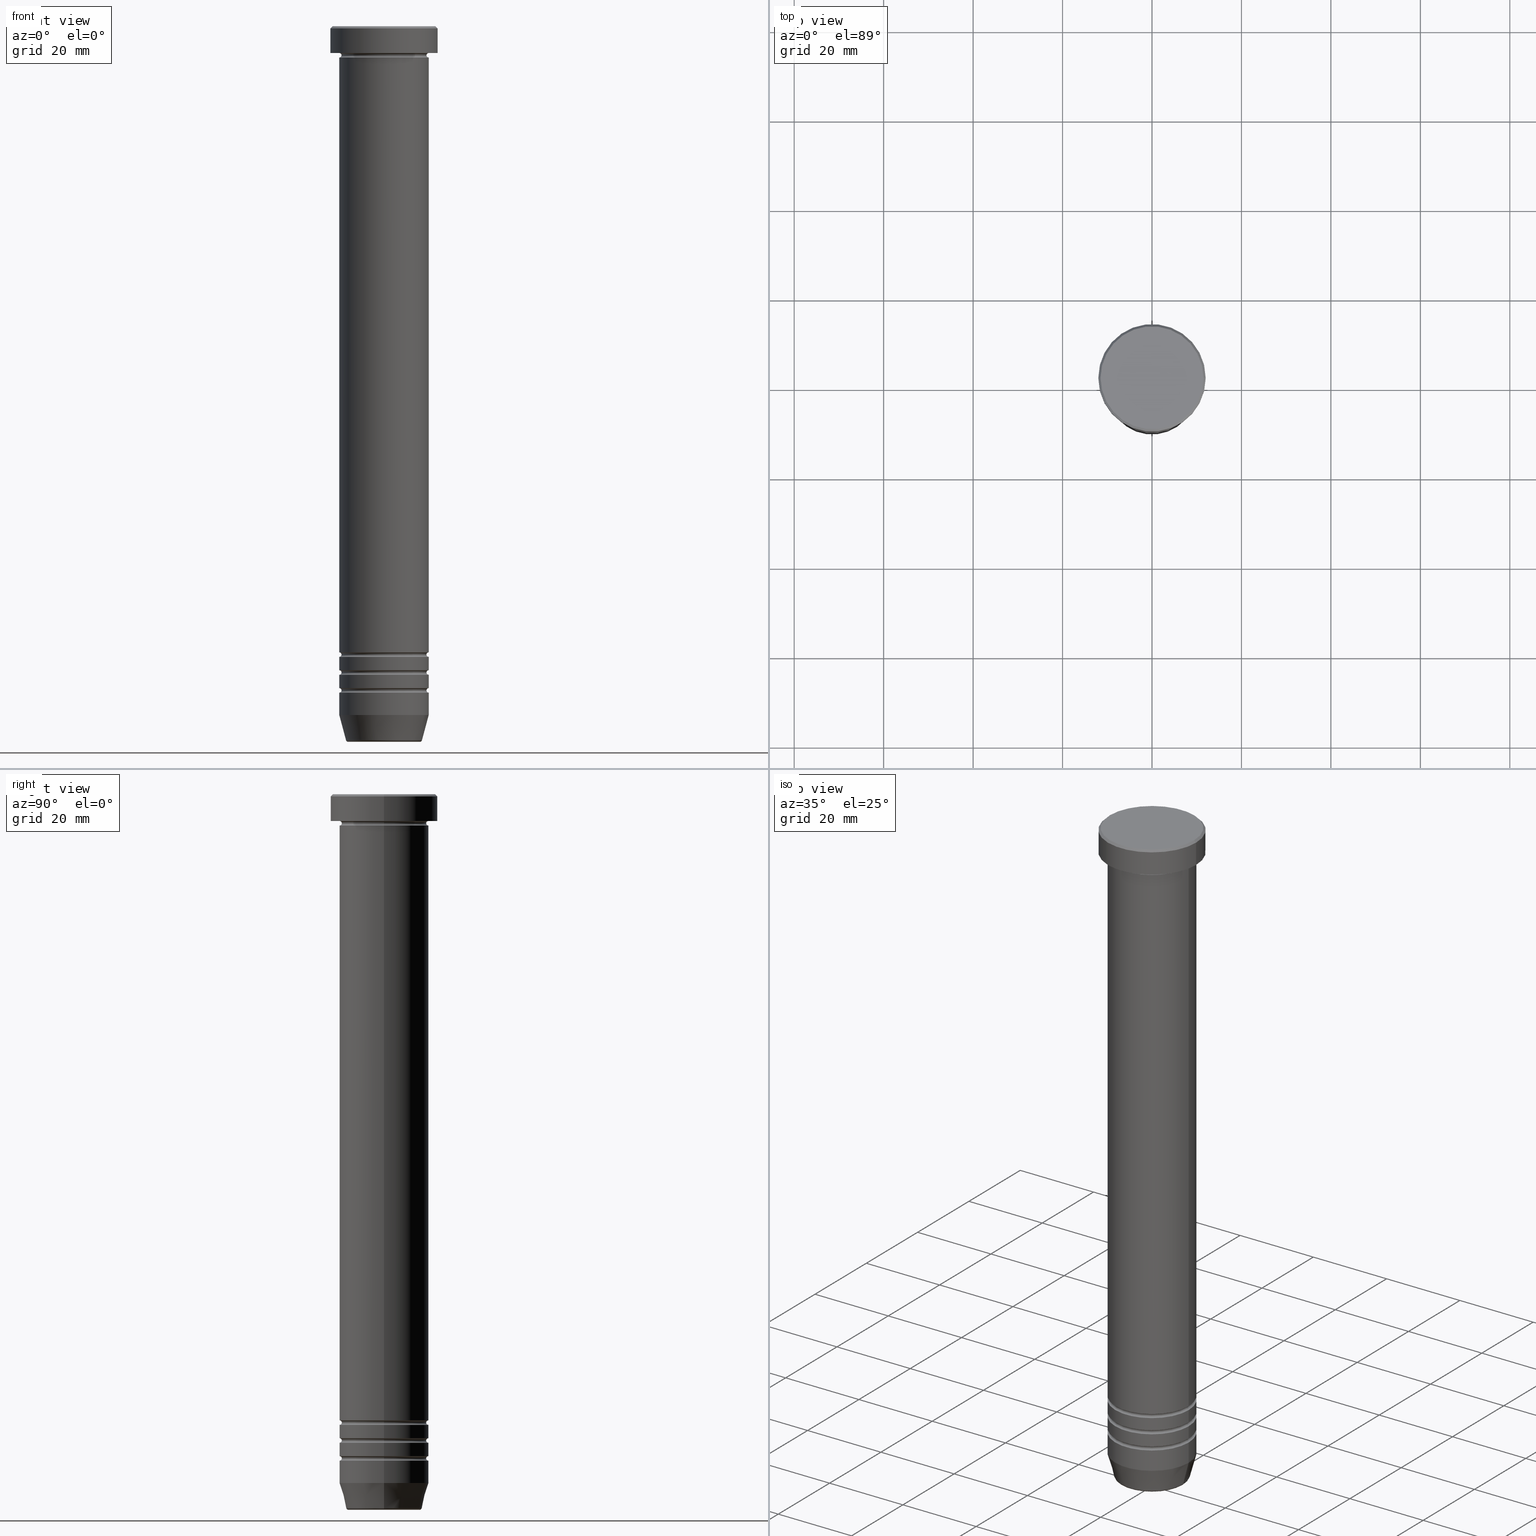
[diagram: canonical four-view strip — front | top / right | iso, engineering-drawing reading convention]
A machine part, canonical four-view strip (front | top / right | iso — engineering-drawing reading convention). The complete STEP part file that produces these views, byte-faithful:
ISO-10303-21;
HEADER;
FILE_DESCRIPTION (( 'STEP AP203' ),
    '1' );
FILE_NAME ('2801.STEP',
    '2024-01-02T21:47:40',
    ( '' ),
    ( '' ),
    'SwSTEP 2.0',
    'SolidWorks 2019',
    '' );
FILE_SCHEMA (( 'CONFIG_CONTROL_DESIGN' ));
ENDSEC;

DATA;
#1 = APPROVAL ( #73, 'NEUR�EN�' ) ;
#2 = CARTESIAN_POINT ( 'NONE',  ( 0.000000000000000000, 0.000000000000000000, -30.00000000000000000 ) ) ;
#3 = ORIENTED_EDGE ( 'NONE', *, *, #560, .T. ) ;
#4 = EDGE_CURVE ( 'NONE', #599, #413, #686, .T. ) ;
#5 = DIRECTION ( 'NONE',  ( -1.000000000000000000, 0.000000000000000000, 0.000000000000000000 ) ) ;
#6 = ORIENTED_EDGE ( 'NONE', *, *, #495, .F. ) ;
#7 = EDGE_CURVE ( 'NONE', #595, #784, #622, .T. ) ;
#8 = DIRECTION ( 'NONE',  ( -0.000000000000000000, -0.000000000000000000, 1.000000000000000000 ) ) ;
#9 = CARTESIAN_POINT ( 'NONE',  ( 0.000000000000000000, 0.000000000000000000, -0.5000000000000056621 ) ) ;
#10 = ORIENTED_EDGE ( 'NONE', *, *, #26, .T. ) ;
#11 = DIRECTION ( 'NONE',  ( -0.000000000000000000, -1.000000000000000000, -0.000000000000000000 ) ) ;
#12 = AXIS2_PLACEMENT_3D ( 'NONE', #852, #456, #1021 ) ;
#13 = FACE_OUTER_BOUND ( 'NONE', #354, .T. ) ;
#14 = VERTEX_POINT ( 'NONE', #998 ) ;
#15 = CIRCLE ( 'NONE', #654, 10.00000000000000000 ) ;
#16 = AXIS2_PLACEMENT_3D ( 'NONE', #907, #992, #732 ) ;
#17 = EDGE_CURVE ( 'NONE', #61, #193, #237, .T. ) ;
#18 = DIRECTION ( 'NONE',  ( -0.000000000000000000, -0.000000000000000000, 1.000000000000000000 ) ) ;
#19 = FACE_OUTER_BOUND ( 'NONE', #894, .T. ) ;
#20 = DIRECTION ( 'NONE',  ( -0.000000000000000000, -0.000000000000000000, 1.000000000000000000 ) ) ;
#21 = ORIENTED_EDGE ( 'NONE', *, *, #861, .T. ) ;
#22 = EDGE_LOOP ( 'NONE', ( #373, #1023, #6, #270 ) ) ;
#23 = DIRECTION ( 'NONE',  ( -1.000000000000000000, 0.000000000000000000, 0.000000000000000000 ) ) ;
#24 = DIRECTION ( 'NONE',  ( 1.000000000000000000, 0.000000000000000000, 0.000000000000000000 ) ) ;
#25 = ORIENTED_EDGE ( 'NONE', *, *, #572, .T. ) ;
#26 = EDGE_CURVE ( 'NONE', #702, #151, #523, .T. ) ;
#27 = CARTESIAN_POINT ( 'NONE',  ( 0.000000000000000000, 0.000000000000000000, -140.0000000000000000 ) ) ;
#28 = CIRCLE ( 'NONE', #807, 10.00000000000000000 ) ;
#29 = AXIS2_PLACEMENT_3D ( 'NONE', #580, #818, #749 ) ;
#30 = VERTEX_POINT ( 'NONE', #610 ) ;
#31 = DIRECTION ( 'NONE',  ( 1.000000000000000000, 0.000000000000000000, 0.000000000000000000 ) ) ;
#32 = CIRCLE ( 'NONE', #641, 0.5000000000000004441 ) ;
#33 = ORIENTED_EDGE ( 'NONE', *, *, #401, .F. ) ;
#34 = AXIS2_PLACEMENT_3D ( 'NONE', #808, #737, #258 ) ;
#35 = CARTESIAN_POINT ( 'NONE',  ( 0.000000000000000000, 0.000000000000000000, -6.499999999999999112 ) ) ;
#36 = CARTESIAN_POINT ( 'NONE',  ( 0.000000000000000000, 0.000000000000000000, -6.499999999999999112 ) ) ;
#37 = CARTESIAN_POINT ( 'NONE',  ( 9.999999999999994671, 0.000000000000000000, -144.5000000000000284 ) ) ;
#38 = EDGE_LOOP ( 'NONE', ( #163, #381, #956, #81 ) ) ;
#39 = EDGE_LOOP ( 'NONE', ( #417, #1053, #680, #209 ) ) ;
#40 = PLANE ( 'NONE',  #933 ) ;
#41 = CARTESIAN_POINT ( 'NONE',  ( -10.00000000000000000, 1.224646799147353256E-15, -149.0000000000000284 ) ) ;
#42 = ADVANCED_FACE ( 'NONE', ( #922 ), #170, .T. ) ;
#43 = CARTESIAN_POINT ( 'NONE',  ( -9.999999999999992895, 1.224646799147352665E-15, -148.0000000000000284 ) ) ;
#44 = EDGE_CURVE ( 'NONE', #731, #784, #223, .T. ) ;
#45 = EDGE_LOOP ( 'NONE', ( #441, #3, #753, #674 ) ) ;
#46 = VERTEX_POINT ( 'NONE', #460 ) ;
#47 = ORIENTED_EDGE ( 'NONE', *, *, #232, .F. ) ;
#48 = APPROVAL_ROLE ( '' ) ;
#49 = LINE ( 'NONE', #758, #891 ) ;
#50 = CARTESIAN_POINT ( 'NONE',  ( 0.000000000000000000, 0.000000000000000000, -144.0000000000000284 ) ) ;
#51 = CARTESIAN_POINT ( 'NONE',  ( -9.999999999999994671, 0.000000000000000000, -148.5000000000000284 ) ) ;
#52 = ADVANCED_FACE ( 'NONE', ( #57 ), #1027, .F. ) ;
#53 = AXIS2_PLACEMENT_3D ( 'NONE', #418, #8, #672 ) ;
#54 = ORIENTED_EDGE ( 'NONE', *, *, #445, .T. ) ;
#55 = CIRCLE ( 'NONE', #1042, 8.008641351423772647 ) ;
#56 =( GEOMETRIC_REPRESENTATION_CONTEXT ( 3 ) GLOBAL_UNCERTAINTY_ASSIGNED_CONTEXT ( ( #1029 ) ) GLOBAL_UNIT_ASSIGNED_CONTEXT ( ( #283, #203, #268 ) ) REPRESENTATION_CONTEXT ( 'NONE', 'WORKASPACE' ) );
#57 = FACE_OUTER_BOUND ( 'NONE', #577, .T. ) ;
#58 = CARTESIAN_POINT ( 'NONE',  ( 10.00000000000000000, 0.000000000000000000, -154.0000000000000000 ) ) ;
#59 = DIRECTION ( 'NONE',  ( -0.7071067811865474617, 0.000000000000000000, -0.7071067811865474617 ) ) ;
#60 = ORIENTED_EDGE ( 'NONE', *, *, #285, .T. ) ;
#61 = VERTEX_POINT ( 'NONE', #716 ) ;
#62 = DIRECTION ( 'NONE',  ( -1.000000000000000000, 0.000000000000000000, 0.000000000000000000 ) ) ;
#63 = PERSON_AND_ORGANIZATION ( #440, #498 ) ;
#64 = DIRECTION ( 'NONE',  ( 0.000000000000000000, 0.000000000000000000, -1.000000000000000000 ) ) ;
#65 = CARTESIAN_POINT ( 'NONE',  ( 0.000000000000000000, 0.000000000000000000, -160.0000000000000284 ) ) ;
#66 = DIRECTION ( 'NONE',  ( 0.000000000000000000, 0.000000000000000000, -1.000000000000000000 ) ) ;
#67 = EDGE_CURVE ( 'NONE', #391, #1034, #584, .T. ) ;
#68 = DIRECTION ( 'NONE',  ( 1.000000000000000000, 0.000000000000000000, 0.000000000000000000 ) ) ;
#69 = AXIS2_PLACEMENT_3D ( 'NONE', #403, #733, #827 ) ;
#70 = EDGE_LOOP ( 'NONE', ( #201, #664, #900, #709 ) ) ;
#71 = CIRCLE ( 'NONE', #556, 0.5000000000000004441 ) ;
#72 = AXIS2_PLACEMENT_3D ( 'NONE', #412, #820, #251 ) ;
#73 = APPROVAL_STATUS ( 'not_yet_approved' ) ;
#74 = LOCAL_TIME ( 22, 47, 40.00000000000000000, #307 ) ;
#75 = DIRECTION ( 'NONE',  ( -0.2588190451025215166, 3.169619151431774802E-17, 0.9659258262890679791 ) ) ;
#76 = CARTESIAN_POINT ( 'NONE',  ( 0.000000000000000000, 0.000000000000000000, -148.5000000000000284 ) ) ;
#77 = DIRECTION ( 'NONE',  ( 1.000000000000000000, 0.000000000000000000, 0.000000000000000000 ) ) ;
#78 = CARTESIAN_POINT ( 'NONE',  ( 0.000000000000000000, 0.000000000000000000, -0.5000000000000056621 ) ) ;
#79 = DIRECTION ( 'NONE',  ( -1.000000000000000000, 0.000000000000000000, 0.000000000000000000 ) ) ;
#80 = EDGE_CURVE ( 'NONE', #1039, #800, #28, .T. ) ;
#81 = ORIENTED_EDGE ( 'NONE', *, *, #478, .F. ) ;
#82 = FACE_OUTER_BOUND ( 'NONE', #834, .T. ) ;
#83 = ORIENTED_EDGE ( 'NONE', *, *, #972, .F. ) ;
#84 = DIRECTION ( 'NONE',  ( -1.000000000000000000, 0.000000000000000000, -0.000000000000000000 ) ) ;
#85 = EDGE_CURVE ( 'NONE', #408, #800, #929, .T. ) ;
#86 = ORIENTED_EDGE ( 'NONE', *, *, #1054, .F. ) ;
#87 = CARTESIAN_POINT ( 'NONE',  ( 0.000000000000000000, 0.000000000000000000, -6.999999999999999112 ) ) ;
#88 = AXIS2_PLACEMENT_3D ( 'NONE', #729, #962, #959 ) ;
#89 = AXIS2_PLACEMENT_3D ( 'NONE', #836, #443, #763 ) ;
#90 = DIRECTION ( 'NONE',  ( -1.224646799147353207E-16, 1.000000000000000000, 0.000000000000000000 ) ) ;
#91 = AXIS2_PLACEMENT_3D ( 'NONE', #340, #90, #663 ) ;
#92 = EDGE_LOOP ( 'NONE', ( #98, #660, #566, #434 ) ) ;
#93 = CC_DESIGN_SECURITY_CLASSIFICATION ( #937, ( #798 ) ) ;
#94 = CYLINDRICAL_SURFACE ( 'NONE', #88, 9.999999999999998224 ) ;
#95 = ADVANCED_FACE ( 'NONE', ( #182 ), #282, .T. ) ;
#96 = FACE_OUTER_BOUND ( 'NONE', #940, .T. ) ;
#97 = VERTEX_POINT ( 'NONE', #198 ) ;
#98 = ORIENTED_EDGE ( 'NONE', *, *, #877, .F. ) ;
#99 = VERTEX_POINT ( 'NONE', #118 ) ;
#100 = EDGE_CURVE ( 'NONE', #695, #908, #764, .T. ) ;
#101 = CARTESIAN_POINT ( 'NONE',  ( -11.49999999999999467, 0.000000000000000000, 0.000000000000000000 ) ) ;
#102 = DIRECTION ( 'NONE',  ( -0.000000000000000000, -1.000000000000000000, -0.000000000000000000 ) ) ;
#103 = ORIENTED_EDGE ( 'NONE', *, *, #812, .F. ) ;
#104 = DIRECTION ( 'NONE',  ( 1.000000000000000000, 0.000000000000000000, 0.000000000000000000 ) ) ;
#105 = DIRECTION ( 'NONE',  ( -0.000000000000000000, -0.000000000000000000, 1.000000000000000000 ) ) ;
#106 = DIRECTION ( 'NONE',  ( -0.000000000000000000, -0.000000000000000000, 1.000000000000000000 ) ) ;
#107 = EDGE_LOOP ( 'NONE', ( #593, #592 ) ) ;
#108 = TOROIDAL_SURFACE ( 'NONE', #623, 9.999999999999994671, 0.5000000000000000000 ) ;
#109 = DIRECTION ( 'NONE',  ( 1.000000000000000000, 0.000000000000000000, 0.000000000000000000 ) ) ;
#110 = ORIENTED_EDGE ( 'NONE', *, *, #420, .F. ) ;
#111 = AXIS2_PLACEMENT_3D ( 'NONE', #693, #377, #279 ) ;
#112 = AXIS2_PLACEMENT_3D ( 'NONE', #179, #743, #109 ) ;
#113 = CARTESIAN_POINT ( 'NONE',  ( 0.000000000000000000, -1.734723475976807094E-15, -30.00000000000000000 ) ) ;
#114 = ORIENTED_EDGE ( 'NONE', *, *, #364, .F. ) ;
#115 = DIRECTION ( 'NONE',  ( -0.000000000000000000, -0.000000000000000000, 1.000000000000000000 ) ) ;
#116 = CARTESIAN_POINT ( 'NONE',  ( 0.000000000000000000, 10.00000000000000000, -30.00000000000000000 ) ) ;
#117 = EDGE_CURVE ( 'NONE', #928, #391, #601, .T. ) ;
#118 = CARTESIAN_POINT ( 'NONE',  ( 9.999999999999992895, 0.000000000000000000, -148.0000000000000284 ) ) ;
#119 = CYLINDRICAL_SURFACE ( 'NONE', #571, 9.999999999999996447 ) ;
#120 = DIRECTION ( 'NONE',  ( 1.000000000000000000, 0.000000000000000000, 0.000000000000000000 ) ) ;
#121 = ORIENTED_EDGE ( 'NONE', *, *, #629, .T. ) ;
#122 = ORIENTED_EDGE ( 'NONE', *, *, #629, .F. ) ;
#123 = AXIS2_PLACEMENT_3D ( 'NONE', #447, #761, #612 ) ;
#124 = CIRCLE ( 'NONE', #396, 10.00000000000000000 ) ;
#125 = FACE_OUTER_BOUND ( 'NONE', #263, .T. ) ;
#126 = TOROIDAL_SURFACE ( 'NONE', #570, 10.00000000000000000, 0.5000000000000000000 ) ;
#127 = ORIENTED_EDGE ( 'NONE', *, *, #409, .F. ) ;
#128 = LOCAL_TIME ( 22, 47, 40.00000000000000000, #302 ) ;
#129 = AXIS2_PLACEMENT_3D ( 'NONE', #436, #607, #23 ) ;
#130 = ADVANCED_FACE ( 'NONE', ( #919 ), #996, .T. ) ;
#131 = CARTESIAN_POINT ( 'NONE',  ( 10.00000000000000000, 0.000000000000000000, -141.0000000000000000 ) ) ;
#132 = DIRECTION ( 'NONE',  ( 0.000000000000000000, 0.000000000000000000, -1.000000000000000000 ) ) ;
#133 = EDGE_CURVE ( 'NONE', #908, #695, #158, .T. ) ;
#134 = CARTESIAN_POINT ( 'NONE',  ( 0.000000000000000000, 0.000000000000000000, -6.999999999999999112 ) ) ;
#135 = VERTEX_POINT ( 'NONE', #768 ) ;
#136 = FACE_BOUND ( 'NONE', #748, .T. ) ;
#137 = CALENDAR_DATE ( 2024, 2, 1 ) ;
#138 = APPROVAL ( #229, 'NEUR�EN�' ) ;
#139 = FACE_OUTER_BOUND ( 'NONE', #551, .T. ) ;
#140 = ORIENTED_EDGE ( 'NONE', *, *, #7, .F. ) ;
#141 = CYLINDRICAL_SURFACE ( 'NONE', #255, 9.999999999999996447 ) ;
#142 = AXIS2_PLACEMENT_3D ( 'NONE', #815, #331, #988 ) ;
#143 = ORIENTED_EDGE ( 'NONE', *, *, #445, .F. ) ;
#144 = CIRCLE ( 'NONE', #397, 8.491604264568300309 ) ;
#145 = CIRCLE ( 'NONE', #72, 0.5000000000000004441 ) ;
#146 = EDGE_LOOP ( 'NONE', ( #33, #817, #316, #330 ) ) ;
#147 = CALENDAR_DATE ( 2024, 2, 1 ) ;
#148 = CARTESIAN_POINT ( 'NONE',  ( 0.000000000000000000, 0.000000000000000000, 0.000000000000000000 ) ) ;
#149 = VERTEX_POINT ( 'NONE', #362 ) ;
#150 = ADVANCED_FACE ( 'NONE', ( #849 ), #843, .F. ) ;
#151 = VERTEX_POINT ( 'NONE', #131 ) ;
#152 = COORDINATED_UNIVERSAL_TIME_OFFSET ( 1, 0, .AHEAD. ) ;
#153 = DIRECTION ( 'NONE',  ( 1.000000000000000000, 0.000000000000000000, 0.000000000000000000 ) ) ;
#154 = ORIENTED_EDGE ( 'NONE', *, *, #309, .T. ) ;
#155 = CARTESIAN_POINT ( 'NONE',  ( -9.999999999999994671, 1.224646799147352665E-15, -140.5000000000000000 ) ) ;
#156 = CARTESIAN_POINT ( 'NONE',  ( 0.000000000000000000, 0.000000000000000000, 0.000000000000000000 ) ) ;
#157 = DIRECTION ( 'NONE',  ( -0.000000000000000000, -0.000000000000000000, 1.000000000000000000 ) ) ;
#158 = CIRCLE ( 'NONE', #123, 9.500000000000000000 ) ;
#159 = CIRCLE ( 'NONE', #496, 9.999999999999992895 ) ;
#160 = CIRCLE ( 'NONE', #450, 9.499999999999994671 ) ;
#161 = ADVANCED_FACE ( 'NONE', ( #136, #635 ), #40, .T. ) ;
#162 = DIRECTION ( 'NONE',  ( -0.000000000000000000, -0.000000000000000000, 1.000000000000000000 ) ) ;
#163 = ORIENTED_EDGE ( 'NONE', *, *, #972, .T. ) ;
#164 = DIRECTION ( 'NONE',  ( -0.000000000000000000, -0.000000000000000000, 1.000000000000000000 ) ) ;
#165 = LINE ( 'NONE', #488, #256 ) ;
#166 = EDGE_CURVE ( 'NONE', #14, #791, #979, .T. ) ;
#167 = DIRECTION ( 'NONE',  ( 1.000000000000000000, 0.000000000000000000, 0.000000000000000000 ) ) ;
#168 = DIRECTION ( 'NONE',  ( 0.7071067811865474617, 8.659560562354932858E-17, -0.7071067811865474617 ) ) ;
#169 = EDGE_CURVE ( 'NONE', #980, #14, #656, .T. ) ;
#170 = CONICAL_SURFACE ( 'NONE', #305, 8.392304845413249836, 0.2617993877991502960 ) ;
#171 = CIRCLE ( 'NONE', #878, 0.5000000000000004441 ) ;
#172 = AXIS2_PLACEMENT_3D ( 'NONE', #148, #636, #68 ) ;
#173 = CARTESIAN_POINT ( 'NONE',  ( 10.00000000000000000, 0.000000000000000000, -30.00000000000000000 ) ) ;
#174 = AXIS2_PLACEMENT_3D ( 'NONE', #351, #770, #530 ) ;
#175 = ORIENTED_EDGE ( 'NONE', *, *, #473, .F. ) ;
#176 = DIRECTION ( 'NONE',  ( -0.000000000000000000, -0.000000000000000000, 1.000000000000000000 ) ) ;
#177 = EDGE_CURVE ( 'NONE', #500, #46, #845, .T. ) ;
#178 = LINE ( 'NONE', #508, #1005 ) ;
#179 = CARTESIAN_POINT ( 'NONE',  ( 0.000000000000000000, 0.000000000000000000, -6.000000000000000000 ) ) ;
#180 = CARTESIAN_POINT ( 'NONE',  ( 0.000000000000000000, 0.000000000000000000, 0.000000000000000000 ) ) ;
#181 = DIRECTION ( 'NONE',  ( 0.000000000000000000, 0.000000000000000000, -1.000000000000000000 ) ) ;
#182 = FACE_OUTER_BOUND ( 'NONE', #1051, .T. ) ;
#183 = CARTESIAN_POINT ( 'NONE',  ( 10.00000000000000000, 0.000000000000000000, -149.0000000000000284 ) ) ;
#184 = DIRECTION ( 'NONE',  ( -0.000000000000000000, -0.000000000000000000, 1.000000000000000000 ) ) ;
#185 = ORIENTED_EDGE ( 'NONE', *, *, #1036, .T. ) ;
#186 = CONICAL_SURFACE ( 'NONE', #863, 11.49999999999999467, 0.7853981633974482790 ) ;
#187 = FACE_OUTER_BOUND ( 'NONE', #823, .T. ) ;
#188 = CIRCLE ( 'NONE', #274, 12.00000000000000000 ) ;
#189 = EDGE_CURVE ( 'NONE', #899, #791, #828, .T. ) ;
#190 = DIRECTION ( 'NONE',  ( -0.000000000000000000, -0.000000000000000000, 1.000000000000000000 ) ) ;
#191 = AXIS2_PLACEMENT_3D ( 'NONE', #514, #973, #825 ) ;
#192 = DIRECTION ( 'NONE',  ( -1.000000000000000000, 0.000000000000000000, 0.000000000000000000 ) ) ;
#193 = VERTEX_POINT ( 'NONE', #512 ) ;
#194 = CARTESIAN_POINT ( 'NONE',  ( 0.000000000000000000, 0.000000000000000000, -6.500000000000000888 ) ) ;
#195 = DIRECTION ( 'NONE',  ( -0.000000000000000000, -0.000000000000000000, 1.000000000000000000 ) ) ;
#196 = EDGE_CURVE ( 'NONE', #97, #30, #688, .T. ) ;
#197 = ORIENTED_EDGE ( 'NONE', *, *, #775, .T. ) ;
#198 = CARTESIAN_POINT ( 'NONE',  ( 10.00000000000000000, 0.000000000000000000, -145.0000000000000284 ) ) ;
#199 = CARTESIAN_POINT ( 'NONE',  ( -8.491604264568300309, 1.132284198685155598E-15, -159.6294095225512990 ) ) ;
#200 = DIRECTION ( 'NONE',  ( 1.000000000000000000, 0.000000000000000000, 0.000000000000000000 ) ) ;
#201 = ORIENTED_EDGE ( 'NONE', *, *, #657, .F. ) ;
#202 = EDGE_CURVE ( 'NONE', #908, #61, #376, .T. ) ;
#203 =( NAMED_UNIT ( * ) PLANE_ANGLE_UNIT ( ) SI_UNIT ( $, .RADIAN. ) );
#204 = CONICAL_SURFACE ( 'NONE', #69, 8.392304845413249836, 0.2617993877991502960 ) ;
#205 = DIRECTION ( 'NONE',  ( 0.000000000000000000, 0.000000000000000000, -1.000000000000000000 ) ) ;
#206 = CARTESIAN_POINT ( 'NONE',  ( 0.000000000000000000, 0.000000000000000000, -140.5000000000000000 ) ) ;
#207 = AXIS2_PLACEMENT_3D ( 'NONE', #685, #614, #24 ) ;
#208 = AXIS2_PLACEMENT_3D ( 'NONE', #913, #370, #212 ) ;
#209 = ORIENTED_EDGE ( 'NONE', *, *, #542, .T. ) ;
#210 = LOCAL_TIME ( 22, 47, 40.00000000000000000, #152 ) ;
#211 = EDGE_CURVE ( 'NONE', #791, #413, #982, .T. ) ;
#212 = DIRECTION ( 'NONE',  ( 1.000000000000000000, 0.000000000000000000, 0.000000000000000000 ) ) ;
#213 = ORIENTED_EDGE ( 'NONE', *, *, #802, .F. ) ;
#214 = DIRECTION ( 'NONE',  ( 1.000000000000000000, 0.000000000000000000, 0.000000000000000000 ) ) ;
#215 = DIRECTION ( 'NONE',  ( 1.000000000000000000, 0.000000000000000000, 0.000000000000000000 ) ) ;
#216 = ORIENTED_EDGE ( 'NONE', *, *, #839, .T. ) ;
#217 = PERSON_AND_ORGANIZATION ( #440, #498 ) ;
#218 = LINE ( 'NONE', #231, #846 ) ;
#219 = CARTESIAN_POINT ( 'NONE',  ( 0.000000000000000000, 0.000000000000000000, -144.5000000000000284 ) ) ;
#220 = DATE_AND_TIME ( #147, #210 ) ;
#221 = CARTESIAN_POINT ( 'NONE',  ( 0.000000000000000000, 0.000000000000000000, -145.0000000000000284 ) ) ;
#222 = CC_DESIGN_PERSON_AND_ORGANIZATION_ASSIGNMENT ( #375, #941, ( #798 ) ) ;
#223 = CIRCLE ( 'NONE', #651, 9.499999999999994671 ) ;
#224 = CIRCLE ( 'NONE', #446, 9.999999999999998224 ) ;
#225 = TOROIDAL_SURFACE ( 'NONE', #465, 10.00000000000000000, 0.5000000000000000000 ) ;
#226 = PERSON_AND_ORGANIZATION_ROLE ( 'classification_officer' ) ;
#227 = LINE ( 'NONE', #1031, #864 ) ;
#228 = DIRECTION ( 'NONE',  ( 0.000000000000000000, 0.000000000000000000, -1.000000000000000000 ) ) ;
#229 = APPROVAL_STATUS ( 'not_yet_approved' ) ;
#230 = LINE ( 'NONE', #618, #483 ) ;
#231 = CARTESIAN_POINT ( 'NONE',  ( -8.392304845413249836, 1.027760926640415931E-15, -160.0000000000000284 ) ) ;
#232 = EDGE_CURVE ( 'NONE', #595, #99, #448, .T. ) ;
#233 = ORIENTED_EDGE ( 'NONE', *, *, #1036, .F. ) ;
#234 = ADVANCED_FACE ( 'NONE', ( #19 ), #1041, .F. ) ;
#235 = COORDINATED_UNIVERSAL_TIME_OFFSET ( 1, 0, .AHEAD. ) ;
#236 = DIRECTION ( 'NONE',  ( 1.000000000000000000, 0.000000000000000000, 0.000000000000000000 ) ) ;
#237 = CIRCLE ( 'NONE', #494, 10.00000000000000000 ) ;
#238 = CIRCLE ( 'NONE', #320, 10.00000000000000000 ) ;
#239 = CONICAL_SURFACE ( 'NONE', #829, 11.49999999999999467, 0.7853981633974482790 ) ;
#240 = CIRCLE ( 'NONE', #112, 12.00000000000000000 ) ;
#241 = ADVANCED_FACE ( 'NONE', ( #1055 ), #965, .F. ) ;
#242 = CC_DESIGN_APPROVAL ( #1, ( #937 ) ) ;
#243 = CARTESIAN_POINT ( 'NONE',  ( 0.000000000000000000, 0.000000000000000000, -148.5000000000000284 ) ) ;
#244 = VERTEX_POINT ( 'NONE', #949 ) ;
#245 = FACE_OUTER_BOUND ( 'NONE', #755, .T. ) ;
#246 = DIRECTION ( 'NONE',  ( 0.000000000000000000, 0.000000000000000000, -1.000000000000000000 ) ) ;
#247 = DIRECTION ( 'NONE',  ( 1.000000000000000000, 0.000000000000000000, 0.000000000000000000 ) ) ;
#248 = ORIENTED_EDGE ( 'NONE', *, *, #657, .T. ) ;
#249 = ORIENTED_EDGE ( 'NONE', *, *, #341, .F. ) ;
#250 = DIRECTION ( 'NONE',  ( -1.000000000000000000, 0.000000000000000000, -0.000000000000000000 ) ) ;
#251 = DIRECTION ( 'NONE',  ( -1.000000000000000000, -1.224646799147353454E-16, 0.000000000000000000 ) ) ;
#252 = ADVANCED_FACE ( 'NONE', ( #472 ), #603, .F. ) ;
#253 = FACE_OUTER_BOUND ( 'NONE', #1007, .T. ) ;
#254 = AXIS2_PLACEMENT_3D ( 'NONE', #9, #989, #901 ) ;
#255 = AXIS2_PLACEMENT_3D ( 'NONE', #314, #648, #1033 ) ;
#256 = VECTOR ( 'NONE', #168, 1000.000000000000114 ) ;
#257 = DIRECTION ( 'NONE',  ( -0.000000000000000000, -0.000000000000000000, 1.000000000000000000 ) ) ;
#258 = DIRECTION ( 'NONE',  ( 1.000000000000000000, 0.000000000000000000, 0.000000000000000000 ) ) ;
#259 = CYLINDRICAL_SURFACE ( 'NONE', #1022, 10.00000000000000000 ) ;
#260 = ORIENTED_EDGE ( 'NONE', *, *, #839, .F. ) ;
#261 = CARTESIAN_POINT ( 'NONE',  ( 0.000000000000000000, 0.000000000000000000, -140.5000000000000000 ) ) ;
#262 = DIRECTION ( 'NONE',  ( 1.000000000000000000, 0.000000000000000000, 0.000000000000000000 ) ) ;
#263 = EDGE_LOOP ( 'NONE', ( #419, #1001, #511, #554 ) ) ;
#264 = ORIENTED_EDGE ( 'NONE', *, *, #297, .F. ) ;
#265 = DIRECTION ( 'NONE',  ( 1.224646799147353207E-16, 1.000000000000000000, 0.000000000000000000 ) ) ;
#266 = ORIENTED_EDGE ( 'NONE', *, *, #202, .T. ) ;
#267 = EDGE_CURVE ( 'NONE', #408, #244, #124, .T. ) ;
#268 =( NAMED_UNIT ( * ) SI_UNIT ( $, .STERADIAN. ) SOLID_ANGLE_UNIT ( ) );
#269 = FACE_OUTER_BOUND ( 'NONE', #518, .T. ) ;
#270 = ORIENTED_EDGE ( 'NONE', *, *, #4, .F. ) ;
#271 = DIRECTION ( 'NONE',  ( -0.000000000000000000, -0.000000000000000000, 1.000000000000000000 ) ) ;
#272 = EDGE_CURVE ( 'NONE', #30, #687, #751, .T. ) ;
#273 = AXIS2_PLACEMENT_3D ( 'NONE', #261, #181, #824 ) ;
#274 = AXIS2_PLACEMENT_3D ( 'NONE', #78, #475, #236 ) ;
#275 = AXIS2_PLACEMENT_3D ( 'NONE', #544, #930, #1017 ) ;
#276 = DIRECTION ( 'NONE',  ( -0.000000000000000000, -0.000000000000000000, 1.000000000000000000 ) ) ;
#277 = ORIENTED_EDGE ( 'NONE', *, *, #67, .T. ) ;
#278 = DIRECTION ( 'NONE',  ( 1.000000000000000000, 0.000000000000000000, 0.000000000000000000 ) ) ;
#279 = DIRECTION ( 'NONE',  ( 1.000000000000000000, 0.000000000000000000, 0.000000000000000000 ) ) ;
#280 = ADVANCED_FACE ( 'NONE', ( #677 ), #516, .F. ) ;
#281 = LINE ( 'NONE', #368, #887 ) ;
#282 = CYLINDRICAL_SURFACE ( 'NONE', #950, 9.999999999999996447 ) ;
#283 =( LENGTH_UNIT ( ) NAMED_UNIT ( * ) SI_UNIT ( .MILLI., .METRE. ) );
#284 = DIRECTION ( 'NONE',  ( -0.000000000000000000, -0.000000000000000000, 1.000000000000000000 ) ) ;
#285 = EDGE_CURVE ( 'NONE', #14, #151, #653, .T. ) ;
#286 = ORIENTED_EDGE ( 'NONE', *, *, #7, .T. ) ;
#287 = AXIS2_PLACEMENT_3D ( 'NONE', #327, #246, #806 ) ;
#288 = CARTESIAN_POINT ( 'NONE',  ( -12.00000000000000000, 1.469576158976823947E-15, -0.5000000000000056621 ) ) ;
#289 = AXIS2_PLACEMENT_3D ( 'NONE', #832, #527, #540 ) ;
#290 = TOROIDAL_SURFACE ( 'NONE', #129, 9.999999999999994671, 0.5000000000000000000 ) ;
#291 = ORIENTED_EDGE ( 'NONE', *, *, #1032, .T. ) ;
#292 = DIRECTION ( 'NONE',  ( 0.000000000000000000, 0.000000000000000000, 1.000000000000000000 ) ) ;
#293 = DIRECTION ( 'NONE',  ( 1.000000000000000000, 0.000000000000000000, 0.000000000000000000 ) ) ;
#294 = ORIENTED_EDGE ( 'NONE', *, *, #775, .F. ) ;
#295 = ORIENTED_EDGE ( 'NONE', *, *, #877, .T. ) ;
#296 = CALENDAR_DATE ( 2024, 2, 1 ) ;
#297 = EDGE_CURVE ( 'NONE', #99, #595, #159, .T. ) ;
#298 = CYLINDRICAL_SURFACE ( 'NONE', #172, 10.00000000000000000 ) ;
#299 = CARTESIAN_POINT ( 'NONE',  ( 9.999999999999996447, 0.000000000000000000, 0.000000000000000000 ) ) ;
#300 = EDGE_LOOP ( 'NONE', ( #83, #803 ) ) ;
#301 = EDGE_LOOP ( 'NONE', ( #233, #765, #552, #821 ) ) ;
#302 = COORDINATED_UNIVERSAL_TIME_OFFSET ( 1, 0, .AHEAD. ) ;
#303 = AXIS2_PLACEMENT_3D ( 'NONE', #338, #682, #343 ) ;
#304 = DIRECTION ( 'NONE',  ( 1.000000000000000000, 0.000000000000000000, 0.000000000000000000 ) ) ;
#305 = AXIS2_PLACEMENT_3D ( 'NONE', #65, #482, #799 ) ;
#306 = AXIS2_PLACEMENT_3D ( 'NONE', #363, #613, #1009 ) ;
#307 = COORDINATED_UNIVERSAL_TIME_OFFSET ( 1, 0, .AHEAD. ) ;
#308 = CARTESIAN_POINT ( 'NONE',  ( 0.000000000000000000, 0.000000000000000000, -159.6294095225512990 ) ) ;
#309 = EDGE_CURVE ( 'NONE', #980, #687, #722, .T. ) ;
#310 = ADVANCED_FACE ( 'NONE', ( #245 ), #186, .T. ) ;
#311 = CARTESIAN_POINT ( 'NONE',  ( 0.000000000000000000, 12.00000000000000000, -6.000000000000000000 ) ) ;
#312 = DIRECTION ( 'NONE',  ( -0.000000000000000000, -1.000000000000000000, -0.000000000000000000 ) ) ;
#313 = PERSON_AND_ORGANIZATION ( #440, #498 ) ;
#314 = CARTESIAN_POINT ( 'NONE',  ( 0.000000000000000000, 0.000000000000000000, 0.000000000000000000 ) ) ;
#315 = ADVANCED_FACE ( 'NONE', ( #502 ), #94, .T. ) ;
#316 = ORIENTED_EDGE ( 'NONE', *, *, #489, .T. ) ;
#317 = DIRECTION ( 'NONE',  ( 0.000000000000000000, 0.000000000000000000, -1.000000000000000000 ) ) ;
#318 = CYLINDRICAL_SURFACE ( 'NONE', #1025, 10.00000000000000000 ) ;
#319 = CARTESIAN_POINT ( 'NONE',  ( 0.000000000000000000, 0.000000000000000000, -154.0000000000000000 ) ) ;
#320 = AXIS2_PLACEMENT_3D ( 'NONE', #995, #742, #415 ) ;
#321 = TOROIDAL_SURFACE ( 'NONE', #337, 9.999999999999994671, 0.5000000000000000000 ) ;
#322 = AXIS2_PLACEMENT_3D ( 'NONE', #526, #356, #850 ) ;
#323 = CARTESIAN_POINT ( 'NONE',  ( -10.00000000000000178, 1.224646799147353454E-15, -30.00000000000000000 ) ) ;
#324 = VERTEX_POINT ( 'NONE', #569 ) ;
#325 = DIRECTION ( 'NONE',  ( -0.000000000000000000, -0.000000000000000000, 1.000000000000000000 ) ) ;
#326 = EDGE_LOOP ( 'NONE', ( #369, #468, #10, #715 ) ) ;
#327 = CARTESIAN_POINT ( 'NONE',  ( 0.000000000000000000, 0.000000000000000000, -140.5000000000000000 ) ) ;
#328 = ADVANCED_FACE ( 'NONE', ( #881 ), #204, .T. ) ;
#329 = LINE ( 'NONE', #1057, #557 ) ;
#330 = ORIENTED_EDGE ( 'NONE', *, *, #177, .F. ) ;
#331 = DIRECTION ( 'NONE',  ( 0.000000000000000000, 0.000000000000000000, -1.000000000000000000 ) ) ;
#332 = DIRECTION ( 'NONE',  ( -0.000000000000000000, -0.000000000000000000, 1.000000000000000000 ) ) ;
#333 = AXIS2_PLACEMENT_3D ( 'NONE', #35, #20, #348 ) ;
#334 = ORIENTED_EDGE ( 'NONE', *, *, #792, .F. ) ;
#335 = DIRECTION ( 'NONE',  ( 0.000000000000000000, 0.000000000000000000, -1.000000000000000000 ) ) ;
#336 = AXIS2_PLACEMENT_3D ( 'NONE', #87, #581, #978 ) ;
#337 = AXIS2_PLACEMENT_3D ( 'NONE', #567, #727, #550 ) ;
#338 = CARTESIAN_POINT ( 'NONE',  ( 8.008641351423772647, 0.000000000000000000, -159.5000000000000284 ) ) ;
#339 = CC_DESIGN_APPROVAL ( #848, ( #798 ) ) ;
#340 = CARTESIAN_POINT ( 'NONE',  ( 9.999999999999994671, 1.224646799147352665E-15, -148.5000000000000284 ) ) ;
#341 = EDGE_CURVE ( 'NONE', #1039, #784, #171, .T. ) ;
#342 = ORIENTED_EDGE ( 'NONE', *, *, #432, .T. ) ;
#343 = DIRECTION ( 'NONE',  ( 0.000000000000000000, 0.000000000000000000, -1.000000000000000000 ) ) ;
#344 = DIRECTION ( 'NONE',  ( -0.000000000000000000, -0.000000000000000000, 1.000000000000000000 ) ) ;
#345 = CARTESIAN_POINT ( 'NONE',  ( 0.000000000000000000, 0.000000000000000000, -160.0000000000000284 ) ) ;
#346 = ORIENTED_EDGE ( 'NONE', *, *, #1054, .T. ) ;
#347 = ADVANCED_FACE ( 'NONE', ( #253 ), #259, .T. ) ;
#348 = DIRECTION ( 'NONE',  ( 1.000000000000000000, 0.000000000000000000, 0.000000000000000000 ) ) ;
#349 = PRODUCT ( '2801', '2801', '', ( #647 ) ) ;
#350 = ORIENTED_EDGE ( 'NONE', *, *, #812, .T. ) ;
#351 = CARTESIAN_POINT ( 'NONE',  ( 0.000000000000000000, 0.000000000000000000, -160.0000000000000284 ) ) ;
#352 = FACE_OUTER_BOUND ( 'NONE', #301, .T. ) ;
#353 = DIRECTION ( 'NONE',  ( 0.000000000000000000, -1.000000000000000000, 0.000000000000000000 ) ) ;
#354 = EDGE_LOOP ( 'NONE', ( #543, #504, #644, #1040 ) ) ;
#355 = AXIS2_PLACEMENT_3D ( 'NONE', #155, #903, #506 ) ;
#356 = DIRECTION ( 'NONE',  ( -0.000000000000000000, -0.000000000000000000, 1.000000000000000000 ) ) ;
#357 = EDGE_CURVE ( 'NONE', #702, #980, #481, .T. ) ;
#358 = VECTOR ( 'NONE', #157, 1000.000000000000000 ) ;
#359 = DIRECTION ( 'NONE',  ( 1.000000000000000000, 0.000000000000000000, 0.000000000000000000 ) ) ;
#360 = ORIENTED_EDGE ( 'NONE', *, *, #117, .T. ) ;
#361 = VERTEX_POINT ( 'NONE', #1016 ) ;
#362 = CARTESIAN_POINT ( 'NONE',  ( 12.00000000000000000, 0.000000000000000000, -6.000000000000000000 ) ) ;
#363 = CARTESIAN_POINT ( 'NONE',  ( 0.000000000000000000, 0.000000000000000000, 0.000000000000000000 ) ) ;
#364 = EDGE_CURVE ( 'NONE', #595, #361, #281, .T. ) ;
#365 = CARTESIAN_POINT ( 'NONE',  ( 0.000000000000000000, 0.000000000000000000, -159.5000000000000284 ) ) ;
#366 = CARTESIAN_POINT ( 'NONE',  ( 9.499999999999994671, 0.000000000000000000, -140.5000000000000000 ) ) ;
#367 = ORIENTED_EDGE ( 'NONE', *, *, #211, .F. ) ;
#368 = CARTESIAN_POINT ( 'NONE',  ( -9.999999999999996447, 1.224646799147352862E-15, 0.000000000000000000 ) ) ;
#369 = ORIENTED_EDGE ( 'NONE', *, *, #169, .F. ) ;
#370 = DIRECTION ( 'NONE',  ( -0.000000000000000000, -0.000000000000000000, 1.000000000000000000 ) ) ;
#371 = CARTESIAN_POINT ( 'NONE',  ( 0.000000000000000000, 0.000000000000000000, 0.000000000000000000 ) ) ;
#372 = ORIENTED_EDGE ( 'NONE', *, *, #872, .F. ) ;
#373 = ORIENTED_EDGE ( 'NONE', *, *, #960, .F. ) ;
#374 = EDGE_LOOP ( 'NONE', ( #602, #295, #524, #935 ) ) ;
#375 = PERSON_AND_ORGANIZATION ( #440, #498 ) ;
#376 = CIRCLE ( 'NONE', #426, 0.5000000000000004441 ) ;
#377 = DIRECTION ( 'NONE',  ( -0.000000000000000000, -0.000000000000000000, 1.000000000000000000 ) ) ;
#378 = DIRECTION ( 'NONE',  ( -0.000000000000000000, -0.000000000000000000, 1.000000000000000000 ) ) ;
#379 = AXIS2_PLACEMENT_3D ( 'NONE', #879, #718, #943 ) ;
#380 = CIRCLE ( 'NONE', #411, 9.999999999999992895 ) ;
#381 = ORIENTED_EDGE ( 'NONE', *, *, #513, .T. ) ;
#382 = EDGE_CURVE ( 'NONE', #599, #899, #407, .T. ) ;
#383 = ORIENTED_EDGE ( 'NONE', *, *, #422, .F. ) ;
#384 = VERTEX_POINT ( 'NONE', #746 ) ;
#385 = DIRECTION ( 'NONE',  ( 0.000000000000000000, -1.000000000000000000, 0.000000000000000000 ) ) ;
#386 = DIRECTION ( 'NONE',  ( 0.2588190451025215166, 0.000000000000000000, 0.9659258262890679791 ) ) ;
#387 = CC_DESIGN_DATE_AND_TIME_ASSIGNMENT ( #638, #717, ( #760 ) ) ;
#388 = ORIENTED_EDGE ( 'NONE', *, *, #196, .F. ) ;
#389 = LINE ( 'NONE', #779, #553 ) ;
#390 = FACE_OUTER_BOUND ( 'NONE', #838, .T. ) ;
#391 = VERTEX_POINT ( 'NONE', #525 ) ;
#392 = CALENDAR_DATE ( 2024, 2, 1 ) ;
#393 = ADVANCED_FACE ( 'NONE', ( #96 ), #108, .F. ) ;
#394 = AXIS2_PLACEMENT_3D ( 'NONE', #219, #66, #1043 ) ;
#395 = FACE_OUTER_BOUND ( 'NONE', #107, .T. ) ;
#396 = AXIS2_PLACEMENT_3D ( 'NONE', #319, #18, #490 ) ;
#397 = AXIS2_PLACEMENT_3D ( 'NONE', #308, #633, #867 ) ;
#398 = TOROIDAL_SURFACE ( 'NONE', #1008, 10.00000000000000000, 0.5000000000000000000 ) ;
#399 = COORDINATED_UNIVERSAL_TIME_OFFSET ( 1, 0, .AHEAD. ) ;
#400 = CYLINDRICAL_SURFACE ( 'NONE', #916, 12.00000000000000000 ) ;
#401 = EDGE_CURVE ( 'NONE', #457, #500, #178, .T. ) ;
#402 = CARTESIAN_POINT ( 'NONE',  ( 9.999999999999998224, 0.000000000000000000, -144.0000000000000284 ) ) ;
#403 = CARTESIAN_POINT ( 'NONE',  ( 0.000000000000000000, 0.000000000000000000, -160.0000000000000284 ) ) ;
#404 = VERTEX_POINT ( 'NONE', #101 ) ;
#405 = CARTESIAN_POINT ( 'NONE',  ( -9.999999999999992895, 1.224646799147352665E-15, -140.0000000000000000 ) ) ;
#406 = CARTESIAN_POINT ( 'NONE',  ( 0.000000000000000000, 0.000000000000000000, -141.0000000000000000 ) ) ;
#407 = CIRCLE ( 'NONE', #12, 9.999999999999992895 ) ;
#408 = VERTEX_POINT ( 'NONE', #58 ) ;
#409 = EDGE_CURVE ( 'NONE', #391, #408, #389, .T. ) ;
#410 = CARTESIAN_POINT ( 'NONE',  ( -10.00000000000000000, 1.224646799147353256E-15, -6.999999999999999112 ) ) ;
#411 = AXIS2_PLACEMENT_3D ( 'NONE', #27, #442, #278 ) ;
#412 = CARTESIAN_POINT ( 'NONE',  ( 9.999999999999994671, 1.224646799147352665E-15, -140.5000000000000000 ) ) ;
#413 = VERTEX_POINT ( 'NONE', #366 ) ;
#414 = CARTESIAN_POINT ( 'NONE',  ( 0.000000000000000000, 0.000000000000000000, 0.000000000000000000 ) ) ;
#415 = DIRECTION ( 'NONE',  ( -1.000000000000000000, 0.000000000000000000, 0.000000000000000000 ) ) ;
#416 = CARTESIAN_POINT ( 'NONE',  ( 0.000000000000000000, 0.000000000000000000, -144.5000000000000284 ) ) ;
#417 = ORIENTED_EDGE ( 'NONE', *, *, #681, .F. ) ;
#418 = CARTESIAN_POINT ( 'NONE',  ( 0.000000000000000000, 0.000000000000000000, -144.5000000000000284 ) ) ;
#419 = ORIENTED_EDGE ( 'NONE', *, *, #133, .F. ) ;
#420 = EDGE_CURVE ( 'NONE', #895, #885, #535, .T. ) ;
#421 = DIRECTION ( 'NONE',  ( -0.000000000000000000, -0.000000000000000000, 1.000000000000000000 ) ) ;
#422 = EDGE_CURVE ( 'NONE', #980, #702, #224, .T. ) ;
#423 = CLOSED_SHELL ( 'NONE', ( #665, #728, #594, #347, #699, #620, #734, #796, #161, #730, #1024, #1010, #310 ) ) ;
#424 = ORIENTED_EDGE ( 'NONE', *, *, #459, .F. ) ;
#425 = DIRECTION ( 'NONE',  ( 1.000000000000000000, 0.000000000000000000, 0.000000000000000000 ) ) ;
#426 = AXIS2_PLACEMENT_3D ( 'NONE', #667, #11, #335 ) ;
#427 = DIRECTION ( 'NONE',  ( 1.000000000000000000, 0.000000000000000000, 0.000000000000000000 ) ) ;
#428 = AXIS2_PLACEMENT_3D ( 'NONE', #851, #195, #120 ) ;
#429 = CARTESIAN_POINT ( 'NONE',  ( 0.000000000000000000, 0.000000000000000000, 0.000000000000000000 ) ) ;
#430 = APPROVAL_PERSON_ORGANIZATION ( #712, #848, #726 ) ;
#431 = ORIENTED_EDGE ( 'NONE', *, *, #100, .T. ) ;
#432 = EDGE_CURVE ( 'NONE', #599, #885, #714, .T. ) ;
#433 = CARTESIAN_POINT ( 'NONE',  ( 9.999999999999994671, 0.000000000000000000, -140.5000000000000000 ) ) ;
#434 = ORIENTED_EDGE ( 'NONE', *, *, #80, .F. ) ;
#435 = DIRECTION ( 'NONE',  ( 1.000000000000000000, 0.000000000000000000, 0.000000000000000000 ) ) ;
#436 = CARTESIAN_POINT ( 'NONE',  ( 0.000000000000000000, 0.000000000000000000, -140.5000000000000000 ) ) ;
#437 = DIRECTION ( 'NONE',  ( -0.000000000000000000, -0.000000000000000000, 1.000000000000000000 ) ) ;
#438 = CARTESIAN_POINT ( 'NONE',  ( 9.999999999999998224, 0.000000000000000000, 0.000000000000000000 ) ) ;
#439 = ORIENTED_EDGE ( 'NONE', *, *, #364, .T. ) ;
#440 = PERSON ( 'NEUR�EN�', 'NEUR�EN�', 'NEUR�EN�', ('NEUR�EN�'), ('NEUR�EN�'), ('NEUR�EN�') ) ;
#441 = ORIENTED_EDGE ( 'NONE', *, *, #873, .F. ) ;
#442 = DIRECTION ( 'NONE',  ( -0.000000000000000000, -0.000000000000000000, 1.000000000000000000 ) ) ;
#443 = DIRECTION ( 'NONE',  ( -0.000000000000000000, -0.000000000000000000, 1.000000000000000000 ) ) ;
#444 = ORIENTED_EDGE ( 'NONE', *, *, #420, .T. ) ;
#445 = EDGE_CURVE ( 'NONE', #193, #61, #238, .T. ) ;
#446 = AXIS2_PLACEMENT_3D ( 'NONE', #50, #842, #944 ) ;
#447 = CARTESIAN_POINT ( 'NONE',  ( 0.000000000000000000, 0.000000000000000000, -6.499999999999999112 ) ) ;
#448 = CIRCLE ( 'NONE', #810, 9.999999999999992895 ) ;
#449 = LINE ( 'NONE', #700, #987 ) ;
#450 = AXIS2_PLACEMENT_3D ( 'NONE', #206, #1004, #167 ) ;
#451 = DIRECTION ( 'NONE',  ( 1.000000000000000000, 0.000000000000000000, 0.000000000000000000 ) ) ;
#452 = CARTESIAN_POINT ( 'NONE',  ( 10.00000000000000000, 0.000000000000000000, 0.000000000000000000 ) ) ;
#453 = DIRECTION ( 'NONE',  ( -0.000000000000000000, -0.000000000000000000, 1.000000000000000000 ) ) ;
#454 = DIRECTION ( 'NONE',  ( 0.000000000000000000, 0.000000000000000000, -1.000000000000000000 ) ) ;
#455 = CARTESIAN_POINT ( 'NONE',  ( -9.999999999999994671, 1.224646799147352665E-15, -148.5000000000000284 ) ) ;
#456 = DIRECTION ( 'NONE',  ( -0.000000000000000000, -0.000000000000000000, 1.000000000000000000 ) ) ;
#457 = VERTEX_POINT ( 'NONE', #991 ) ;
#458 = PLANE ( 'NONE',  #520 ) ;
#459 = EDGE_CURVE ( 'NONE', #538, #683, #794, .T. ) ;
#460 = CARTESIAN_POINT ( 'NONE',  ( 10.00000000000000000, 0.000000000000000000, -6.999999999999999112 ) ) ;
#461 = ORIENTED_EDGE ( 'NONE', *, *, #756, .F. ) ;
#462 = CIRCLE ( 'NONE', #1056, 10.00000000000000000 ) ;
#463 = LINE ( 'NONE', #797, #936 ) ;
#464 = TOROIDAL_SURFACE ( 'NONE', #289, 10.00000000000000000, 0.5000000000000000000 ) ;
#465 = AXIS2_PLACEMENT_3D ( 'NONE', #36, #453, #997 ) ;
#466 = EDGE_CURVE ( 'NONE', #384, #404, #568, .T. ) ;
#467 = ORIENTED_EDGE ( 'NONE', *, *, #232, .T. ) ;
#468 = ORIENTED_EDGE ( 'NONE', *, *, #422, .T. ) ;
#469 = DATE_AND_TIME ( #296, #128 ) ;
#470 = CARTESIAN_POINT ( 'NONE',  ( 0.000000000000000000, 0.000000000000000000, -6.500000000000000888 ) ) ;
#471 = ORIENTED_EDGE ( 'NONE', *, *, #826, .T. ) ;
#472 = FACE_OUTER_BOUND ( 'NONE', #541, .T. ) ;
#473 = EDGE_CURVE ( 'NONE', #457, #853, #462, .T. ) ;
#474 = APPROVAL_DATE_TIME ( #953, #848 ) ;
#475 = DIRECTION ( 'NONE',  ( 0.000000000000000000, 0.000000000000000000, -1.000000000000000000 ) ) ;
#476 = ORIENTED_EDGE ( 'NONE', *, *, #785, .T. ) ;
#477 = PERSON_AND_ORGANIZATION ( #440, #498 ) ;
#478 = EDGE_CURVE ( 'NONE', #149, #683, #230, .T. ) ;
#479 = AXIS2_PLACEMENT_3D ( 'NONE', #491, #876, #964 ) ;
#480 = DIRECTION ( 'NONE',  ( -0.000000000000000000, -0.000000000000000000, 1.000000000000000000 ) ) ;
#481 = CIRCLE ( 'NONE', #889, 9.999999999999998224 ) ;
#482 = DIRECTION ( 'NONE',  ( -0.000000000000000000, -0.000000000000000000, 1.000000000000000000 ) ) ;
#483 = VECTOR ( 'NONE', #931, 1000.000000000000000 ) ;
#484 = CIRCLE ( 'NONE', #34, 9.499999999999994671 ) ;
#485 = EDGE_LOOP ( 'NONE', ( #788, #471, #606, #661 ) ) ;
#486 = DIRECTION ( 'NONE',  ( 0.000000000000000000, -0.000000000000000000, 1.000000000000000000 ) ) ;
#487 = ORIENTED_EDGE ( 'NONE', *, *, #905, .F. ) ;
#488 = CARTESIAN_POINT ( 'NONE',  ( 11.49999999999999467, 1.408343819019455584E-15, 0.000000000000000000 ) ) ;
#489 = EDGE_CURVE ( 'NONE', #853, #46, #227, .T. ) ;
#490 = DIRECTION ( 'NONE',  ( 1.000000000000000000, 0.000000000000000000, 0.000000000000000000 ) ) ;
#491 = CARTESIAN_POINT ( 'NONE',  ( -9.999999999999994671, 0.000000000000000000, -140.5000000000000000 ) ) ;
#492 = DIRECTION ( 'NONE',  ( 0.000000000000000000, 0.000000000000000000, -1.000000000000000000 ) ) ;
#493 = ORIENTED_EDGE ( 'NONE', *, *, #495, .T. ) ;
#494 = AXIS2_PLACEMENT_3D ( 'NONE', #909, #184, #192 ) ;
#495 = EDGE_CURVE ( 'NONE', #413, #791, #160, .T. ) ;
#496 = AXIS2_PLACEMENT_3D ( 'NONE', #1012, #844, #77 ) ;
#497 = AXIS2_PLACEMENT_3D ( 'NONE', #787, #385, #64 ) ;
#498 = ORGANIZATION ( 'NEUR�EN�', 'NEUR�EN�', '' ) ;
#499 = CARTESIAN_POINT ( 'NONE',  ( 10.00000000000000000, 0.000000000000000000, -30.00000000000000000 ) ) ;
#500 = VERTEX_POINT ( 'NONE', #410 ) ;
#501 = ORIENTED_EDGE ( 'NONE', *, *, #401, .T. ) ;
#502 = FACE_OUTER_BOUND ( 'NONE', #579, .T. ) ;
#503 = DIRECTION ( 'NONE',  ( 1.000000000000000000, 0.000000000000000000, 0.000000000000000000 ) ) ;
#504 = ORIENTED_EDGE ( 'NONE', *, *, #833, .T. ) ;
#505 = EDGE_CURVE ( 'NONE', #928, #135, #55, .T. ) ;
#506 = DIRECTION ( 'NONE',  ( -1.000000000000000000, 1.224646799147353454E-16, 0.000000000000000000 ) ) ;
#507 = EDGE_CURVE ( 'NONE', #244, #408, #15, .T. ) ;
#508 = CARTESIAN_POINT ( 'NONE',  ( -10.00000000000000000, 1.224646799147353256E-15, 0.000000000000000000 ) ) ;
#509 = CARTESIAN_POINT ( 'NONE',  ( 0.000000000000000000, 0.000000000000000000, 0.000000000000000000 ) ) ;
#510 = DIRECTION ( 'NONE',  ( -0.000000000000000000, -0.000000000000000000, 1.000000000000000000 ) ) ;
#511 = ORIENTED_EDGE ( 'NONE', *, *, #177, .T. ) ;
#512 = CARTESIAN_POINT ( 'NONE',  ( 10.00000000000000000, 1.224646799147353256E-15, -6.000000000000000000 ) ) ;
#513 = EDGE_CURVE ( 'NONE', #324, #538, #49, .T. ) ;
#514 = CARTESIAN_POINT ( 'NONE',  ( 10.00000000000000000, 1.224646799147353256E-15, -6.500000000000000888 ) ) ;
#515 = ORIENTED_EDGE ( 'NONE', *, *, #357, .T. ) ;
#516 = PLANE ( 'NONE',  #519 ) ;
#517 = VECTOR ( 'NONE', #276, 1000.000000000000000 ) ;
#518 = EDGE_LOOP ( 'NONE', ( #963, #439, #86, #773 ) ) ;
#519 = AXIS2_PLACEMENT_3D ( 'NONE', #113, #883, #84 ) ;
#520 = AXIS2_PLACEMENT_3D ( 'NONE', #116, #609, #1015 ) ;
#521 = CIRCLE ( 'NONE', #191, 0.5000000000000004441 ) ;
#522 = DIRECTION ( 'NONE',  ( -0.000000000000000000, -0.000000000000000000, 1.000000000000000000 ) ) ;
#523 = LINE ( 'NONE', #438, #517 ) ;
#524 = ORIENTED_EDGE ( 'NONE', *, *, #560, .F. ) ;
#525 = CARTESIAN_POINT ( 'NONE',  ( 8.491604264568300309, 0.000000000000000000, -159.6294095225512990 ) ) ;
#526 = CARTESIAN_POINT ( 'NONE',  ( 0.000000000000000000, 0.000000000000000000, -6.000000000000000000 ) ) ;
#527 = DIRECTION ( 'NONE',  ( -0.000000000000000000, -0.000000000000000000, 1.000000000000000000 ) ) ;
#528 = ADVANCED_FACE ( 'NONE', ( #1011 ), #705, .F. ) ;
#529 = ORIENTED_EDGE ( 'NONE', *, *, #272, .F. ) ;
#530 = DIRECTION ( 'NONE',  ( 1.000000000000000000, 0.000000000000000000, 0.000000000000000000 ) ) ;
#531 = DIRECTION ( 'NONE',  ( -0.000000000000000000, -0.000000000000000000, 1.000000000000000000 ) ) ;
#532 = DIRECTION ( 'NONE',  ( -0.000000000000000000, -0.000000000000000000, 1.000000000000000000 ) ) ;
#533 = ORIENTED_EDGE ( 'NONE', *, *, #872, .T. ) ;
#534 = VECTOR ( 'NONE', #835, 1000.000000000000000 ) ;
#535 = CIRCLE ( 'NONE', #671, 10.00000000000000000 ) ;
#536 = CIRCLE ( 'NONE', #1006, 0.5000000000000004441 ) ;
#537 = CARTESIAN_POINT ( 'NONE',  ( 0.000000000000000000, 0.000000000000000000, 0.000000000000000000 ) ) ;
#538 = VERTEX_POINT ( 'NONE', #288 ) ;
#539 = LOCAL_TIME ( 22, 47, 40.00000000000000000, #235 ) ;
#540 = DIRECTION ( 'NONE',  ( 1.000000000000000000, 0.000000000000000000, 0.000000000000000000 ) ) ;
#541 = EDGE_LOOP ( 'NONE', ( #977, #1061, #25, #260 ) ) ;
#542 = EDGE_CURVE ( 'NONE', #46, #500, #781, .T. ) ;
#543 = ORIENTED_EDGE ( 'NONE', *, *, #513, .F. ) ;
#544 = CARTESIAN_POINT ( 'NONE',  ( 0.000000000000000000, 0.000000000000000000, -148.5000000000000284 ) ) ;
#545 = ADVANCED_FACE ( 'NONE', ( #269 ), #932, .T. ) ;
#546 = DIRECTION ( 'NONE',  ( -1.000000000000000000, 1.224646799147353454E-16, 0.000000000000000000 ) ) ;
#547 = DIRECTION ( 'NONE',  ( 0.000000000000000000, 0.000000000000000000, -1.000000000000000000 ) ) ;
#548 = SECURITY_CLASSIFICATION_LEVEL ( 'unclassified' ) ;
#549 = ADVANCED_FACE ( 'NONE', ( #352 ), #624, .T. ) ;
#550 = DIRECTION ( 'NONE',  ( -1.000000000000000000, 0.000000000000000000, 0.000000000000000000 ) ) ;
#551 = EDGE_LOOP ( 'NONE', ( #649, #175 ) ) ;
#552 = ORIENTED_EDGE ( 'NONE', *, *, #67, .F. ) ;
#553 = VECTOR ( 'NONE', #386, 1000.000000000000114 ) ;
#554 = ORIENTED_EDGE ( 'NONE', *, *, #576, .F. ) ;
#555 = FACE_OUTER_BOUND ( 'NONE', #146, .T. ) ;
#556 = AXIS2_PLACEMENT_3D ( 'NONE', #778, #1003, #546 ) ;
#557 = VECTOR ( 'NONE', #888, 1000.000000000000000 ) ;
#558 = APPROVAL_PERSON_ORGANIZATION ( #477, #1, #793 ) ;
#559 = CARTESIAN_POINT ( 'NONE',  ( 0.000000000000000000, 0.000000000000000000, 0.000000000000000000 ) ) ;
#560 = EDGE_CURVE ( 'NONE', #800, #1039, #985, .T. ) ;
#561 = DATE_TIME_ROLE ( 'classification_date' ) ;
#562 = MANIFOLD_SOLID_BREP ( 'Zkosen�1', #423 ) ;
#563 = DIRECTION ( 'NONE',  ( 0.000000000000000000, 0.000000000000000000, -1.000000000000000000 ) ) ;
#564 = ORIENTED_EDGE ( 'NONE', *, *, #432, .F. ) ;
#565 = APPROVAL_STATUS ( 'not_yet_approved' ) ;
#566 = ORIENTED_EDGE ( 'NONE', *, *, #85, .T. ) ;
#567 = CARTESIAN_POINT ( 'NONE',  ( 0.000000000000000000, 0.000000000000000000, -148.5000000000000284 ) ) ;
#568 = CIRCLE ( 'NONE', #704, 11.49999999999999467 ) ;
#569 = CARTESIAN_POINT ( 'NONE',  ( -12.00000000000000000, 1.469576158976823947E-15, -6.000000000000000000 ) ) ;
#570 = AXIS2_PLACEMENT_3D ( 'NONE', #470, #563, #646 ) ;
#571 = AXIS2_PLACEMENT_3D ( 'NONE', #537, #692, #679 ) ;
#572 = EDGE_CURVE ( 'NONE', #702, #30, #739, .T. ) ;
#573 = ORIENTED_EDGE ( 'NONE', *, *, #542, .F. ) ;
#574 = CARTESIAN_POINT ( 'NONE',  ( 0.000000000000000000, 0.000000000000000000, -148.5000000000000284 ) ) ;
#575 = ORIENTED_EDGE ( 'NONE', *, *, #189, .F. ) ;
#576 = EDGE_CURVE ( 'NONE', #695, #46, #536, .T. ) ;
#577 = EDGE_LOOP ( 'NONE', ( #837, #185 ) ) ;
#578 = DIRECTION ( 'NONE',  ( 1.000000000000000000, 0.000000000000000000, 0.000000000000000000 ) ) ;
#579 = EDGE_LOOP ( 'NONE', ( #515, #974, #122, #588 ) ) ;
#580 = CARTESIAN_POINT ( 'NONE',  ( 9.999999999999994671, 1.224646799147352665E-15, -144.5000000000000284 ) ) ;
#581 = DIRECTION ( 'NONE',  ( -0.000000000000000000, -0.000000000000000000, 1.000000000000000000 ) ) ;
#582 = DIRECTION ( 'NONE',  ( -0.000000000000000000, -0.000000000000000000, 1.000000000000000000 ) ) ;
#583 = DIRECTION ( 'NONE',  ( -0.000000000000000000, -0.000000000000000000, 1.000000000000000000 ) ) ;
#584 = CIRCLE ( 'NONE', #736, 8.491604264568300309 ) ;
#585 = VECTOR ( 'NONE', #378, 1000.000000000000000 ) ;
#586 = AXIS2_PLACEMENT_3D ( 'NONE', #221, #958, #153 ) ;
#587 = ADVANCED_FACE ( 'NONE', ( #627 ), #689, .T. ) ;
#588 = ORIENTED_EDGE ( 'NONE', *, *, #26, .F. ) ;
#589 = CIRCLE ( 'NONE', #586, 10.00000000000000000 ) ;
#590 = CIRCLE ( 'NONE', #16, 11.49999999999999467 ) ;
#591 = FACE_OUTER_BOUND ( 'NONE', #92, .T. ) ;
#592 = ORIENTED_EDGE ( 'NONE', *, *, #466, .T. ) ;
#593 = ORIENTED_EDGE ( 'NONE', *, *, #905, .T. ) ;
#594 = ADVANCED_FACE ( 'NONE', ( #125 ), #464, .F. ) ;
#595 = VERTEX_POINT ( 'NONE', #43 ) ;
#596 = DIRECTION ( 'NONE',  ( 0.000000000000000000, 0.000000000000000000, -1.000000000000000000 ) ) ;
#597 = ORIENTED_EDGE ( 'NONE', *, *, #44, .T. ) ;
#598 = DIRECTION ( 'NONE',  ( -1.000000000000000000, 1.224646799147353454E-16, 0.000000000000000000 ) ) ;
#599 = VERTEX_POINT ( 'NONE', #776 ) ;
#600 = DIRECTION ( 'NONE',  ( 0.000000000000000000, -1.000000000000000000, 0.000000000000000000 ) ) ;
#601 = CIRCLE ( 'NONE', #303, 0.5000000000000004441 ) ;
#602 = ORIENTED_EDGE ( 'NONE', *, *, #267, .T. ) ;
#603 = TOROIDAL_SURFACE ( 'NONE', #53, 9.999999999999994671, 0.5000000000000000000 ) ;
#604 = AXIS2_PLACEMENT_3D ( 'NONE', #860, #486, #293 ) ;
#605 = DIRECTION ( 'NONE',  ( 1.000000000000000000, 0.000000000000000000, 0.000000000000000000 ) ) ;
#606 = ORIENTED_EDGE ( 'NONE', *, *, #17, .F. ) ;
#607 = DIRECTION ( 'NONE',  ( 0.000000000000000000, 0.000000000000000000, -1.000000000000000000 ) ) ;
#608 = EDGE_CURVE ( 'NONE', #135, #1034, #71, .T. ) ;
#609 = DIRECTION ( 'NONE',  ( 0.000000000000000000, 0.000000000000000000, -1.000000000000000000 ) ) ;
#610 = CARTESIAN_POINT ( 'NONE',  ( 9.499999999999994671, 0.000000000000000000, -144.5000000000000284 ) ) ;
#611 = ORIENTED_EDGE ( 'NONE', *, *, #166, .F. ) ;
#612 = DIRECTION ( 'NONE',  ( 1.000000000000000000, 0.000000000000000000, 0.000000000000000000 ) ) ;
#613 = DIRECTION ( 'NONE',  ( -0.000000000000000000, -0.000000000000000000, 1.000000000000000000 ) ) ;
#614 = DIRECTION ( 'NONE',  ( -0.000000000000000000, -0.000000000000000000, 1.000000000000000000 ) ) ;
#615 = ORIENTED_EDGE ( 'NONE', *, *, #608, .F. ) ;
#616 = DIRECTION ( 'NONE',  ( -0.000000000000000000, -0.000000000000000000, 1.000000000000000000 ) ) ;
#617 = ORIENTED_EDGE ( 'NONE', *, *, #771, .T. ) ;
#618 = CARTESIAN_POINT ( 'NONE',  ( 12.00000000000000000, 0.000000000000000000, 0.000000000000000000 ) ) ;
#619 = ORIENTED_EDGE ( 'NONE', *, *, #1048, .T. ) ;
#620 = ADVANCED_FACE ( 'NONE', ( #139 ), #458, .T. ) ;
#621 = ADVANCED_FACE ( 'NONE', ( #921 ), #966, .F. ) ;
#622 = CIRCLE ( 'NONE', #1038, 0.5000000000000004441 ) ;
#623 = AXIS2_PLACEMENT_3D ( 'NONE', #981, #257, #896 ) ;
#624 = TOROIDAL_SURFACE ( 'NONE', #767, 8.008641351423772647, 0.5000000000000000000 ) ;
#625 = LOCAL_TIME ( 22, 47, 40.00000000000000000, #399 ) ;
#626 = EDGE_LOOP ( 'NONE', ( #666, #634, #597, #249 ) ) ;
#627 = FACE_OUTER_BOUND ( 'NONE', #857, .T. ) ;
#628 = CARTESIAN_POINT ( 'NONE',  ( 0.000000000000000000, 0.000000000000000000, -30.00000000000000000 ) ) ;
#629 = EDGE_CURVE ( 'NONE', #151, #14, #795, .T. ) ;
#630 = EDGE_LOOP ( 'NONE', ( #114, #467, #617, #910 ) ) ;
#631 = DIRECTION ( 'NONE',  ( 0.000000000000000000, -0.000000000000000000, 1.000000000000000000 ) ) ;
#632 = ORIENTED_EDGE ( 'NONE', *, *, #196, .T. ) ;
#633 = DIRECTION ( 'NONE',  ( -0.000000000000000000, -0.000000000000000000, 1.000000000000000000 ) ) ;
#634 = ORIENTED_EDGE ( 'NONE', *, *, #873, .T. ) ;
#635 = FACE_OUTER_BOUND ( 'NONE', #300, .T. ) ;
#636 = DIRECTION ( 'NONE',  ( -0.000000000000000000, -0.000000000000000000, 1.000000000000000000 ) ) ;
#637 = DIRECTION ( 'NONE',  ( -1.000000000000000000, 0.000000000000000000, 0.000000000000000000 ) ) ;
#638 = DATE_AND_TIME ( #392, #539 ) ;
#639 = AXIS2_PLACEMENT_3D ( 'NONE', #741, #662, #637 ) ;
#640 = DIRECTION ( 'NONE',  ( -1.000000000000000000, 0.000000000000000000, 0.000000000000000000 ) ) ;
#641 = AXIS2_PLACEMENT_3D ( 'NONE', #882, #102, #596 ) ;
#642 = EDGE_CURVE ( 'NONE', #361, #97, #589, .T. ) ;
#643 = CIRCLE ( 'NONE', #322, 12.00000000000000000 ) ;
#644 = ORIENTED_EDGE ( 'NONE', *, *, #478, .T. ) ;
#645 = DATE_AND_TIME ( #137, #74 ) ;
#646 = DIRECTION ( 'NONE',  ( -1.000000000000000000, 0.000000000000000000, 0.000000000000000000 ) ) ;
#647 = MECHANICAL_CONTEXT ( 'NONE', #869, 'mechanical' ) ;
#648 = DIRECTION ( 'NONE',  ( -0.000000000000000000, -0.000000000000000000, 1.000000000000000000 ) ) ;
#649 = ORIENTED_EDGE ( 'NONE', *, *, #1048, .F. ) ;
#650 = ADVANCED_FACE ( 'NONE', ( #954 ), #141, .T. ) ;
#651 = AXIS2_PLACEMENT_3D ( 'NONE', #76, #547, #856 ) ;
#652 = DIRECTION ( 'NONE',  ( 1.000000000000000000, 0.000000000000000000, 0.000000000000000000 ) ) ;
#653 = CIRCLE ( 'NONE', #738, 10.00000000000000000 ) ;
#654 = AXIS2_PLACEMENT_3D ( 'NONE', #698, #531, #708 ) ;
#655 = AXIS2_PLACEMENT_3D ( 'NONE', #243, #492, #247 ) ;
#656 = LINE ( 'NONE', #735, #915 ) ;
#657 = EDGE_CURVE ( 'NONE', #1034, #244, #218, .T. ) ;
#658 = CARTESIAN_POINT ( 'NONE',  ( -9.500000000000000000, 1.194030629168669469E-15, -6.499999999999999112 ) ) ;
#659 = ORIENTED_EDGE ( 'NONE', *, *, #642, .T. ) ;
#660 = ORIENTED_EDGE ( 'NONE', *, *, #507, .T. ) ;
#661 = ORIENTED_EDGE ( 'NONE', *, *, #202, .F. ) ;
#662 = DIRECTION ( 'NONE',  ( 0.000000000000000000, 0.000000000000000000, -1.000000000000000000 ) ) ;
#663 = DIRECTION ( 'NONE',  ( -1.000000000000000000, -1.224646799147353454E-16, 0.000000000000000000 ) ) ;
#664 = ORIENTED_EDGE ( 'NONE', *, *, #756, .T. ) ;
#665 = ADVANCED_FACE ( 'NONE', ( #390 ), #239, .T. ) ;
#666 = ORIENTED_EDGE ( 'NONE', *, *, #80, .T. ) ;
#667 = CARTESIAN_POINT ( 'NONE',  ( -10.00000000000000000, 0.000000000000000000, -6.500000000000000888 ) ) ;
#668 = DIRECTION ( 'NONE',  ( 1.000000000000000000, 0.000000000000000000, 0.000000000000000000 ) ) ;
#669 = AXIS2_PLACEMENT_3D ( 'NONE', #433, #353, #934 ) ;
#670 = CC_DESIGN_PERSON_AND_ORGANIZATION_ASSIGNMENT ( #789, #226, ( #937 ) ) ;
#671 = AXIS2_PLACEMENT_3D ( 'NONE', #628, #938, #215 ) ;
#672 = DIRECTION ( 'NONE',  ( 1.000000000000000000, 0.000000000000000000, 0.000000000000000000 ) ) ;
#673 = AXIS2_PLACEMENT_3D ( 'NONE', #371, #190, #451 ) ;
#674 = ORIENTED_EDGE ( 'NONE', *, *, #802, .T. ) ;
#675 = CIRCLE ( 'NONE', #91, 0.5000000000000004441 ) ;
#676 = DIRECTION ( 'NONE',  ( -0.000000000000000000, -0.000000000000000000, 1.000000000000000000 ) ) ;
#677 = FACE_OUTER_BOUND ( 'NONE', #999, .T. ) ;
#678 = EDGE_LOOP ( 'NONE', ( #60, #350, #493, #611 ) ) ;
#679 = DIRECTION ( 'NONE',  ( 1.000000000000000000, 0.000000000000000000, 0.000000000000000000 ) ) ;
#680 = ORIENTED_EDGE ( 'NONE', *, *, #576, .T. ) ;
#681 = EDGE_CURVE ( 'NONE', #908, #500, #811, .T. ) ;
#682 = DIRECTION ( 'NONE',  ( 0.000000000000000000, -1.000000000000000000, 0.000000000000000000 ) ) ;
#683 = VERTEX_POINT ( 'NONE', #1047 ) ;
#684 = CYLINDRICAL_SURFACE ( 'NONE', #306, 9.999999999999998224 ) ;
#685 = CARTESIAN_POINT ( 'NONE',  ( 0.000000000000000000, 0.000000000000000000, -144.5000000000000284 ) ) ;
#686 = CIRCLE ( 'NONE', #669, 0.5000000000000004441 ) ;
#687 = VERTEX_POINT ( 'NONE', #801 ) ;
#688 = CIRCLE ( 'NONE', #29, 0.5000000000000004441 ) ;
#689 = TOROIDAL_SURFACE ( 'NONE', #1044, 8.008641351423772647, 0.5000000000000000000 ) ;
#690 = AXIS2_PLACEMENT_3D ( 'NONE', #416, #884, #5 ) ;
#691 = CC_DESIGN_DATE_AND_TIME_ASSIGNMENT ( #220, #561, ( #937 ) ) ;
#692 = DIRECTION ( 'NONE',  ( -0.000000000000000000, -0.000000000000000000, 1.000000000000000000 ) ) ;
#693 = CARTESIAN_POINT ( 'NONE',  ( 0.000000000000000000, 0.000000000000000000, -149.0000000000000284 ) ) ;
#694 = ORIENTED_EDGE ( 'NONE', *, *, #4, .T. ) ;
#695 = VERTEX_POINT ( 'NONE', #961 ) ;
#696 = DIRECTION ( 'NONE',  ( 1.000000000000000000, 0.000000000000000000, 0.000000000000000000 ) ) ;
#697 = EDGE_CURVE ( 'NONE', #683, #538, #188, .T. ) ;
#698 = CARTESIAN_POINT ( 'NONE',  ( 0.000000000000000000, 0.000000000000000000, -154.0000000000000000 ) ) ;
#699 = ADVANCED_FACE ( 'NONE', ( #871 ), #400, .T. ) ;
#700 = CARTESIAN_POINT ( 'NONE',  ( -9.999999999999996447, 1.224646799147352862E-15, 0.000000000000000000 ) ) ;
#701 = DIRECTION ( 'NONE',  ( 1.000000000000000000, 0.000000000000000000, 0.000000000000000000 ) ) ;
#702 = VERTEX_POINT ( 'NONE', #402 ) ;
#703 = ADVANCED_FACE ( 'NONE', ( #1030 ), #321, .F. ) ;
#704 = AXIS2_PLACEMENT_3D ( 'NONE', #180, #510, #104 ) ;
#705 = TOROIDAL_SURFACE ( 'NONE', #207, 9.999999999999994671, 0.5000000000000000000 ) ;
#706 = PERSON_AND_ORGANIZATION ( #440, #498 ) ;
#707 = AXIS2_PLACEMENT_3D ( 'NONE', #983, #804, #262 ) ;
#708 = DIRECTION ( 'NONE',  ( 1.000000000000000000, 0.000000000000000000, 0.000000000000000000 ) ) ;
#709 = ORIENTED_EDGE ( 'NONE', *, *, #507, .F. ) ;
#710 = APPLICATION_CONTEXT ( 'configuration controlled 3d designs of mechanical parts and assemblies' ) ;
#711 = DIRECTION ( 'NONE',  ( -0.000000000000000000, -0.000000000000000000, 1.000000000000000000 ) ) ;
#712 = PERSON_AND_ORGANIZATION ( #440, #498 ) ;
#713 = CARTESIAN_POINT ( 'NONE',  ( 9.999999999999996447, 0.000000000000000000, 0.000000000000000000 ) ) ;
#714 = LINE ( 'NONE', #299, #585 ) ;
#715 = ORIENTED_EDGE ( 'NONE', *, *, #285, .F. ) ;
#716 = CARTESIAN_POINT ( 'NONE',  ( -10.00000000000000000, 0.000000000000000000, -6.000000000000000000 ) ) ;
#717 = DATE_TIME_ROLE ( 'creation_date' ) ;
#718 = DIRECTION ( 'NONE',  ( 1.224646799147353207E-16, 1.000000000000000000, 0.000000000000000000 ) ) ;
#719 = ORIENTED_EDGE ( 'NONE', *, *, #17, .T. ) ;
#720 = AXIS2_PLACEMENT_3D ( 'NONE', #1000, #271, #605 ) ;
#721 = APPLICATION_PROTOCOL_DEFINITION ( 'international standard', 'config_control_design', 1994, #710 ) ;
#722 = CIRCLE ( 'NONE', #951, 0.5000000000000004441 ) ;
#723 = AXIS2_PLACEMENT_3D ( 'NONE', #134, #926, #200 ) ;
#724 = PLANE ( 'NONE',  #604 ) ;
#725 = CC_DESIGN_APPROVAL ( #138, ( #760 ) ) ;
#726 = APPROVAL_ROLE ( '' ) ;
#727 = DIRECTION ( 'NONE',  ( 0.000000000000000000, 0.000000000000000000, -1.000000000000000000 ) ) ;
#728 = ADVANCED_FACE ( 'NONE', ( #790 ), #126, .F. ) ;
#729 = CARTESIAN_POINT ( 'NONE',  ( 0.000000000000000000, 0.000000000000000000, 0.000000000000000000 ) ) ;
#730 = ADVANCED_FACE ( 'NONE', ( #555 ), #298, .T. ) ;
#731 = VERTEX_POINT ( 'NONE', #783 ) ;
#732 = DIRECTION ( 'NONE',  ( 1.000000000000000000, 0.000000000000000000, 0.000000000000000000 ) ) ;
#733 = DIRECTION ( 'NONE',  ( -0.000000000000000000, -0.000000000000000000, 1.000000000000000000 ) ) ;
#734 = ADVANCED_FACE ( 'NONE', ( #395 ), #724, .T. ) ;
#735 = CARTESIAN_POINT ( 'NONE',  ( -9.999999999999998224, 1.224646799147353059E-15, 0.000000000000000000 ) ) ;
#736 = AXIS2_PLACEMENT_3D ( 'NONE', #786, #711, #62 ) ;
#737 = DIRECTION ( 'NONE',  ( 0.000000000000000000, 0.000000000000000000, -1.000000000000000000 ) ) ;
#738 = AXIS2_PLACEMENT_3D ( 'NONE', #406, #325, #578 ) ;
#739 = CIRCLE ( 'NONE', #752, 0.5000000000000004441 ) ;
#740 = AXIS2_PLACEMENT_3D ( 'NONE', #840, #616, #696 ) ;
#741 = CARTESIAN_POINT ( 'NONE',  ( 0.000000000000000000, 0.000000000000000000, -148.5000000000000284 ) ) ;
#742 = DIRECTION ( 'NONE',  ( -0.000000000000000000, -0.000000000000000000, 1.000000000000000000 ) ) ;
#743 = DIRECTION ( 'NONE',  ( -0.000000000000000000, -0.000000000000000000, 1.000000000000000000 ) ) ;
#744 = ORIENTED_EDGE ( 'NONE', *, *, #382, .F. ) ;
#745 = CC_DESIGN_PERSON_AND_ORGANIZATION_ASSIGNMENT ( #63, #870, ( #760 ) ) ;
#746 = CARTESIAN_POINT ( 'NONE',  ( 11.49999999999999467, 1.438959988998139766E-15, 0.000000000000000000 ) ) ;
#747 = CARTESIAN_POINT ( 'NONE',  ( -9.499999999999994671, 1.194030629168668681E-15, -140.5000000000000000 ) ) ;
#748 = EDGE_LOOP ( 'NONE', ( #719, #54 ) ) ;
#749 = DIRECTION ( 'NONE',  ( -1.000000000000000000, -1.224646799147353454E-16, 0.000000000000000000 ) ) ;
#750 = FACE_OUTER_BOUND ( 'NONE', #1059, .T. ) ;
#751 = CIRCLE ( 'NONE', #142, 9.499999999999994671 ) ;
#752 = AXIS2_PLACEMENT_3D ( 'NONE', #37, #841, #454 ) ;
#753 = ORIENTED_EDGE ( 'NONE', *, *, #341, .T. ) ;
#754 = CIRCLE ( 'NONE', #174, 8.008641351423772647 ) ;
#755 = EDGE_LOOP ( 'NONE', ( #805, #487, #197, #984 ) ) ;
#756 = EDGE_CURVE ( 'NONE', #1034, #391, #144, .T. ) ;
#757 = CARTESIAN_POINT ( 'NONE',  ( -9.999999999999998224, 1.224646799147353059E-15, -144.0000000000000284 ) ) ;
#758 = CARTESIAN_POINT ( 'NONE',  ( -12.00000000000000000, 1.469576158976823947E-15, 0.000000000000000000 ) ) ;
#759 = ORIENTED_EDGE ( 'NONE', *, *, #572, .F. ) ;
#760 = PRODUCT_DEFINITION ( 'NEZN�M�', '', #798, #859 ) ;
#761 = DIRECTION ( 'NONE',  ( -0.000000000000000000, -0.000000000000000000, 1.000000000000000000 ) ) ;
#762 = DIRECTION ( 'NONE',  ( -1.000000000000000000, 0.000000000000000000, 0.000000000000000000 ) ) ;
#763 = DIRECTION ( 'NONE',  ( 1.000000000000000000, 0.000000000000000000, 0.000000000000000000 ) ) ;
#764 = CIRCLE ( 'NONE', #333, 9.500000000000000000 ) ;
#765 = ORIENTED_EDGE ( 'NONE', *, *, #608, .T. ) ;
#766 = ORIENTED_EDGE ( 'NONE', *, *, #489, .F. ) ;
#767 = AXIS2_PLACEMENT_3D ( 'NONE', #772, #437, #701 ) ;
#768 = CARTESIAN_POINT ( 'NONE',  ( -8.008641351423772647, 1.010348648938492186E-15, -160.0000000000000284 ) ) ;
#769 = CIRCLE ( 'NONE', #655, 9.499999999999994671 ) ;
#770 = DIRECTION ( 'NONE',  ( 0.000000000000000000, 0.000000000000000000, -1.000000000000000000 ) ) ;
#771 = EDGE_CURVE ( 'NONE', #99, #97, #875, .T. ) ;
#772 = CARTESIAN_POINT ( 'NONE',  ( 0.000000000000000000, 0.000000000000000000, -159.5000000000000284 ) ) ;
#773 = ORIENTED_EDGE ( 'NONE', *, *, #771, .F. ) ;
#774 = ORIENTED_EDGE ( 'NONE', *, *, #267, .F. ) ;
#775 = EDGE_CURVE ( 'NONE', #404, #538, #463, .T. ) ;
#776 = CARTESIAN_POINT ( 'NONE',  ( 9.999999999999992895, 0.000000000000000000, -140.0000000000000000 ) ) ;
#777 = CARTESIAN_POINT ( 'NONE',  ( 0.000000000000000000, 1.347111479062088996E-14, -160.0000000000000284 ) ) ;
#778 = CARTESIAN_POINT ( 'NONE',  ( -8.008641351423772647, 9.807756996540256432E-16, -159.5000000000000284 ) ) ;
#779 = CARTESIAN_POINT ( 'NONE',  ( 8.392304845413249836, 0.000000000000000000, -160.0000000000000284 ) ) ;
#780 = ORIENTED_EDGE ( 'NONE', *, *, #166, .T. ) ;
#781 = CIRCLE ( 'NONE', #723, 10.00000000000000000 ) ;
#782 = AXIS2_PLACEMENT_3D ( 'NONE', #2, #583, #898 ) ;
#783 = CARTESIAN_POINT ( 'NONE',  ( 9.499999999999994671, 0.000000000000000000, -148.5000000000000284 ) ) ;
#784 = VERTEX_POINT ( 'NONE', #948 ) ;
#785 = EDGE_CURVE ( 'NONE', #99, #731, #952, .T. ) ;
#786 = CARTESIAN_POINT ( 'NONE',  ( 0.000000000000000000, 0.000000000000000000, -159.6294095225512990 ) ) ;
#787 = CARTESIAN_POINT ( 'NONE',  ( 9.999999999999994671, 0.000000000000000000, -148.5000000000000284 ) ) ;
#788 = ORIENTED_EDGE ( 'NONE', *, *, #133, .T. ) ;
#789 = PERSON_AND_ORGANIZATION ( #440, #498 ) ;
#790 = FACE_OUTER_BOUND ( 'NONE', #485, .T. ) ;
#791 = VERTEX_POINT ( 'NONE', #747 ) ;
#792 = EDGE_CURVE ( 'NONE', #361, #687, #32, .T. ) ;
#793 = APPROVAL_ROLE ( '' ) ;
#794 = CIRCLE ( 'NONE', #254, 12.00000000000000000 ) ;
#795 = CIRCLE ( 'NONE', #89, 10.00000000000000000 ) ;
#796 = ADVANCED_FACE ( 'NONE', ( #13 ), #976, .T. ) ;
#797 = CARTESIAN_POINT ( 'NONE',  ( -11.49999999999999467, 0.000000000000000000, 0.000000000000000000 ) ) ;
#798 = PRODUCT_DEFINITION_FORMATION_WITH_SPECIFIED_SOURCE ( 'LIBOVOLN�', '', #349, .NOT_KNOWN. ) ;
#799 = DIRECTION ( 'NONE',  ( 1.000000000000000000, 0.000000000000000000, 0.000000000000000000 ) ) ;
#800 = VERTEX_POINT ( 'NONE', #183 ) ;
#801 = CARTESIAN_POINT ( 'NONE',  ( -9.499999999999994671, 1.194030629168669075E-15, -144.5000000000000284 ) ) ;
#802 = EDGE_CURVE ( 'NONE', #784, #731, #769, .T. ) ;
#803 = ORIENTED_EDGE ( 'NONE', *, *, #833, .F. ) ;
#804 = DIRECTION ( 'NONE',  ( -0.000000000000000000, -0.000000000000000000, 1.000000000000000000 ) ) ;
#805 = ORIENTED_EDGE ( 'NONE', *, *, #861, .F. ) ;
#806 = DIRECTION ( 'NONE',  ( -1.000000000000000000, 0.000000000000000000, 0.000000000000000000 ) ) ;
#807 = AXIS2_PLACEMENT_3D ( 'NONE', #1035, #164, #1013 ) ;
#808 = CARTESIAN_POINT ( 'NONE',  ( 0.000000000000000000, 0.000000000000000000, -144.5000000000000284 ) ) ;
#809 = ORIENTED_EDGE ( 'NONE', *, *, #792, .T. ) ;
#810 = AXIS2_PLACEMENT_3D ( 'NONE', #971, #105, #425 ) ;
#811 = CIRCLE ( 'NONE', #379, 0.5000000000000004441 ) ;
#812 = EDGE_CURVE ( 'NONE', #151, #413, #145, .T. ) ;
#813 = FACE_OUTER_BOUND ( 'NONE', #814, .T. ) ;
#814 = EDGE_LOOP ( 'NONE', ( #659, #632, #967, #334 ) ) ;
#815 = CARTESIAN_POINT ( 'NONE',  ( 0.000000000000000000, 0.000000000000000000, -144.5000000000000284 ) ) ;
#816 = CARTESIAN_POINT ( 'NONE',  ( 0.000000000000000000, 0.000000000000000000, -144.0000000000000284 ) ) ;
#817 = ORIENTED_EDGE ( 'NONE', *, *, #473, .T. ) ;
#818 = DIRECTION ( 'NONE',  ( -1.224646799147353207E-16, 1.000000000000000000, 0.000000000000000000 ) ) ;
#819 = ORIENTED_EDGE ( 'NONE', *, *, #382, .T. ) ;
#820 = DIRECTION ( 'NONE',  ( -1.224646799147353207E-16, 1.000000000000000000, 0.000000000000000000 ) ) ;
#821 = ORIENTED_EDGE ( 'NONE', *, *, #117, .F. ) ;
#822 = ORIENTED_EDGE ( 'NONE', *, *, #960, .T. ) ;
#823 = EDGE_LOOP ( 'NONE', ( #862, #431, #266, #143 ) ) ;
#824 = DIRECTION ( 'NONE',  ( 1.000000000000000000, 0.000000000000000000, 0.000000000000000000 ) ) ;
#825 = DIRECTION ( 'NONE',  ( -1.000000000000000000, -1.224646799147353454E-16, 0.000000000000000000 ) ) ;
#826 = EDGE_CURVE ( 'NONE', #695, #193, #521, .T. ) ;
#827 = DIRECTION ( 'NONE',  ( 1.000000000000000000, 0.000000000000000000, 0.000000000000000000 ) ) ;
#828 = CIRCLE ( 'NONE', #355, 0.5000000000000004441 ) ;
#829 = AXIS2_PLACEMENT_3D ( 'NONE', #559, #228, #640 ) ;
#830 = ORIENTED_EDGE ( 'NONE', *, *, #785, .F. ) ;
#831 = TOROIDAL_SURFACE ( 'NONE', #866, 9.999999999999994671, 0.5000000000000000000 ) ;
#832 = CARTESIAN_POINT ( 'NONE',  ( 0.000000000000000000, 0.000000000000000000, -6.499999999999999112 ) ) ;
#833 = EDGE_CURVE ( 'NONE', #324, #149, #240, .T. ) ;
#834 = EDGE_LOOP ( 'NONE', ( #1018, #822, #342, #110 ) ) ;
#835 = DIRECTION ( 'NONE',  ( -0.000000000000000000, -0.000000000000000000, 1.000000000000000000 ) ) ;
#836 = CARTESIAN_POINT ( 'NONE',  ( 0.000000000000000000, 0.000000000000000000, -141.0000000000000000 ) ) ;
#837 = ORIENTED_EDGE ( 'NONE', *, *, #505, .T. ) ;
#838 = EDGE_LOOP ( 'NONE', ( #906, #21, #424, #294 ) ) ;
#839 = EDGE_CURVE ( 'NONE', #687, #30, #484, .T. ) ;
#840 = CARTESIAN_POINT ( 'NONE',  ( 0.000000000000000000, 0.000000000000000000, -30.00000000000000000 ) ) ;
#841 = DIRECTION ( 'NONE',  ( 0.000000000000000000, -1.000000000000000000, 0.000000000000000000 ) ) ;
#842 = DIRECTION ( 'NONE',  ( -0.000000000000000000, -0.000000000000000000, 1.000000000000000000 ) ) ;
#843 = TOROIDAL_SURFACE ( 'NONE', #394, 9.999999999999994671, 0.5000000000000000000 ) ;
#844 = DIRECTION ( 'NONE',  ( -0.000000000000000000, -0.000000000000000000, 1.000000000000000000 ) ) ;
#845 = CIRCLE ( 'NONE', #336, 10.00000000000000000 ) ;
#846 = VECTOR ( 'NONE', #75, 1000.000000000000114 ) ;
#847 = TOROIDAL_SURFACE ( 'NONE', #690, 9.999999999999994671, 0.5000000000000000000 ) ;
#848 = APPROVAL ( #565, 'NEUR�EN�' ) ;
#849 = FACE_OUTER_BOUND ( 'NONE', #920, .T. ) ;
#850 = DIRECTION ( 'NONE',  ( 1.000000000000000000, 0.000000000000000000, 0.000000000000000000 ) ) ;
#851 = CARTESIAN_POINT ( 'NONE',  ( 0.000000000000000000, 0.000000000000000000, -140.5000000000000000 ) ) ;
#852 = CARTESIAN_POINT ( 'NONE',  ( 0.000000000000000000, 0.000000000000000000, -140.0000000000000000 ) ) ;
#853 = VERTEX_POINT ( 'NONE', #173 ) ;
#854 = FACE_OUTER_BOUND ( 'NONE', #39, .T. ) ;
#855 = DIRECTION ( 'NONE',  ( -0.000000000000000000, -0.000000000000000000, 1.000000000000000000 ) ) ;
#856 = DIRECTION ( 'NONE',  ( 1.000000000000000000, 0.000000000000000000, 0.000000000000000000 ) ) ;
#857 = EDGE_LOOP ( 'NONE', ( #615, #911, #360, #461 ) ) ;
#858 = DIRECTION ( 'NONE',  ( 1.000000000000000000, 0.000000000000000000, 0.000000000000000000 ) ) ;
#859 = DESIGN_CONTEXT ( 'detailed design', #710, 'design' ) ;
#860 = CARTESIAN_POINT ( 'NONE',  ( 0.000000000000000000, 0.000000000000000000, 0.000000000000000000 ) ) ;
#861 = EDGE_CURVE ( 'NONE', #384, #683, #165, .T. ) ;
#862 = ORIENTED_EDGE ( 'NONE', *, *, #826, .F. ) ;
#863 = AXIS2_PLACEMENT_3D ( 'NONE', #1049, #975, #79 ) ;
#864 = VECTOR ( 'NONE', #162, 1000.000000000000000 ) ;
#865 = APPROVAL_DATE_TIME ( #469, #138 ) ;
#866 = AXIS2_PLACEMENT_3D ( 'NONE', #574, #421, #668 ) ;
#867 = DIRECTION ( 'NONE',  ( -1.000000000000000000, 0.000000000000000000, 0.000000000000000000 ) ) ;
#868 = PRODUCT_RELATED_PRODUCT_CATEGORY ( 'detail', '', ( #349 ) ) ;
#869 = APPLICATION_CONTEXT ( 'configuration controlled 3d designs of mechanical parts and assemblies' ) ;
#870 = PERSON_AND_ORGANIZATION_ROLE ( 'creator' ) ;
#871 = FACE_OUTER_BOUND ( 'NONE', #38, .T. ) ;
#872 = EDGE_CURVE ( 'NONE', #885, #895, #969, .T. ) ;
#873 = EDGE_CURVE ( 'NONE', #800, #731, #675, .T. ) ;
#874 = PERSON_AND_ORGANIZATION_ROLE ( 'design_owner' ) ;
#875 = LINE ( 'NONE', #713, #358 ) ;
#876 = DIRECTION ( 'NONE',  ( -0.000000000000000000, -1.000000000000000000, -0.000000000000000000 ) ) ;
#877 = EDGE_CURVE ( 'NONE', #244, #1039, #329, .T. ) ;
#878 = AXIS2_PLACEMENT_3D ( 'NONE', #51, #312, #893 ) ;
#879 = CARTESIAN_POINT ( 'NONE',  ( -10.00000000000000000, 1.224646799147353256E-15, -6.499999999999999112 ) ) ;
#880 = AXIS2_PLACEMENT_3D ( 'NONE', #156, #292, #946 ) ;
#881 = FACE_OUTER_BOUND ( 'NONE', #70, .T. ) ;
#882 = CARTESIAN_POINT ( 'NONE',  ( -9.999999999999994671, 0.000000000000000000, -144.5000000000000284 ) ) ;
#883 = DIRECTION ( 'NONE',  ( 0.000000000000000000, 0.000000000000000000, -1.000000000000000000 ) ) ;
#884 = DIRECTION ( 'NONE',  ( 0.000000000000000000, 0.000000000000000000, -1.000000000000000000 ) ) ;
#885 = VERTEX_POINT ( 'NONE', #499 ) ;
#886 = CLOSED_SHELL ( 'NONE', ( #947, #621, #902, #528, #703, #912, #549, #315, #95, #42, #130, #545, #650, #942, #328, #52, #280, #955, #986, #587, #990, #241, #252, #150, #393, #234 ) ) ;
#887 = VECTOR ( 'NONE', #284, 1000.000000000000000 ) ;
#888 = DIRECTION ( 'NONE',  ( -0.000000000000000000, -0.000000000000000000, 1.000000000000000000 ) ) ;
#889 = AXIS2_PLACEMENT_3D ( 'NONE', #816, #532, #31 ) ;
#890 = CARTESIAN_POINT ( 'NONE',  ( -9.999999999999994671, 1.224646799147352665E-15, -144.5000000000000284 ) ) ;
#891 = VECTOR ( 'NONE', #855, 1000.000000000000000 ) ;
#892 = CIRCLE ( 'NONE', #208, 10.00000000000000000 ) ;
#893 = DIRECTION ( 'NONE',  ( 0.000000000000000000, 0.000000000000000000, -1.000000000000000000 ) ) ;
#894 = EDGE_LOOP ( 'NONE', ( #103, #121, #780, #923 ) ) ;
#895 = VERTEX_POINT ( 'NONE', #323 ) ;
#896 = DIRECTION ( 'NONE',  ( 1.000000000000000000, 0.000000000000000000, 0.000000000000000000 ) ) ;
#897 = MANIFOLD_SOLID_BREP ( 'Zaoblit5', #886 ) ;
#898 = DIRECTION ( 'NONE',  ( 1.000000000000000000, 0.000000000000000000, 0.000000000000000000 ) ) ;
#899 = VERTEX_POINT ( 'NONE', #405 ) ;
#900 = ORIENTED_EDGE ( 'NONE', *, *, #409, .T. ) ;
#901 = DIRECTION ( 'NONE',  ( 1.000000000000000000, 0.000000000000000000, 0.000000000000000000 ) ) ;
#902 = ADVANCED_FACE ( 'NONE', ( #813 ), #847, .F. ) ;
#903 = DIRECTION ( 'NONE',  ( 1.224646799147353207E-16, 1.000000000000000000, 0.000000000000000000 ) ) ;
#904 = CARTESIAN_POINT ( 'NONE',  ( 0.000000000000000000, 0.000000000000000000, -30.00000000000000000 ) ) ;
#905 = EDGE_CURVE ( 'NONE', #404, #384, #590, .T. ) ;
#906 = ORIENTED_EDGE ( 'NONE', *, *, #466, .F. ) ;
#907 = CARTESIAN_POINT ( 'NONE',  ( 0.000000000000000000, 0.000000000000000000, 0.000000000000000000 ) ) ;
#908 = VERTEX_POINT ( 'NONE', #658 ) ;
#909 = CARTESIAN_POINT ( 'NONE',  ( 0.000000000000000000, 0.000000000000000000, -6.000000000000000000 ) ) ;
#910 = ORIENTED_EDGE ( 'NONE', *, *, #642, .F. ) ;
#911 = ORIENTED_EDGE ( 'NONE', *, *, #505, .F. ) ;
#912 = ADVANCED_FACE ( 'NONE', ( #750 ), #831, .F. ) ;
#913 = CARTESIAN_POINT ( 'NONE',  ( 0.000000000000000000, 0.000000000000000000, -145.0000000000000284 ) ) ;
#914 = DIRECTION ( 'NONE',  ( 0.000000000000000000, 0.000000000000000000, -1.000000000000000000 ) ) ;
#915 = VECTOR ( 'NONE', #332, 1000.000000000000000 ) ;
#916 = AXIS2_PLACEMENT_3D ( 'NONE', #1037, #480, #304 ) ;
#917 = EDGE_LOOP ( 'NONE', ( #383, #154, #529, #759 ) ) ;
#918 = TOROIDAL_SURFACE ( 'NONE', #275, 9.999999999999994671, 0.5000000000000000000 ) ;
#919 = FACE_OUTER_BOUND ( 'NONE', #374, .T. ) ;
#920 = EDGE_LOOP ( 'NONE', ( #388, #346, #809, #216 ) ) ;
#921 = FACE_OUTER_BOUND ( 'NONE', #22, .T. ) ;
#922 = FACE_OUTER_BOUND ( 'NONE', #993, .T. ) ;
#923 = ORIENTED_EDGE ( 'NONE', *, *, #211, .T. ) ;
#924 = FACE_OUTER_BOUND ( 'NONE', #945, .T. ) ;
#925 = ORIENTED_EDGE ( 'NONE', *, *, #44, .F. ) ;
#926 = DIRECTION ( 'NONE',  ( -0.000000000000000000, -0.000000000000000000, 1.000000000000000000 ) ) ;
#927 = CC_DESIGN_PERSON_AND_ORGANIZATION_ASSIGNMENT ( #706, #874, ( #349 ) ) ;
#928 = VERTEX_POINT ( 'NONE', #1052 ) ;
#929 = LINE ( 'NONE', #452, #534 ) ;
#930 = DIRECTION ( 'NONE',  ( -0.000000000000000000, -0.000000000000000000, 1.000000000000000000 ) ) ;
#931 = DIRECTION ( 'NONE',  ( -0.000000000000000000, -0.000000000000000000, 1.000000000000000000 ) ) ;
#932 = CYLINDRICAL_SURFACE ( 'NONE', #673, 9.999999999999996447 ) ;
#933 = AXIS2_PLACEMENT_3D ( 'NONE', #311, #317, #250 ) ;
#934 = DIRECTION ( 'NONE',  ( 0.000000000000000000, 0.000000000000000000, -1.000000000000000000 ) ) ;
#935 = ORIENTED_EDGE ( 'NONE', *, *, #85, .F. ) ;
#936 = VECTOR ( 'NONE', #59, 1000.000000000000114 ) ;
#937 = SECURITY_CLASSIFICATION ( '', '', #548 ) ;
#938 = DIRECTION ( 'NONE',  ( -0.000000000000000000, -0.000000000000000000, 1.000000000000000000 ) ) ;
#939 = PRODUCT_DEFINITION_SHAPE ( 'NONE', 'NONE',  #760 ) ;
#940 = EDGE_LOOP ( 'NONE', ( #575, #744, #694, #367 ) ) ;
#941 = PERSON_AND_ORGANIZATION_ROLE ( 'design_supplier' ) ;
#942 = ADVANCED_FACE ( 'NONE', ( #591 ), #318, .T. ) ;
#943 = DIRECTION ( 'NONE',  ( -1.000000000000000000, 1.224646799147353454E-16, 0.000000000000000000 ) ) ;
#944 = DIRECTION ( 'NONE',  ( 1.000000000000000000, 0.000000000000000000, 0.000000000000000000 ) ) ;
#945 = EDGE_LOOP ( 'NONE', ( #140, #264, #476, #213 ) ) ;
#946 = DIRECTION ( 'NONE',  ( 1.000000000000000000, 0.000000000000000000, 0.000000000000000000 ) ) ;
#947 = ADVANCED_FACE ( 'NONE', ( #968 ), #290, .F. ) ;
#948 = CARTESIAN_POINT ( 'NONE',  ( -9.499999999999994671, 1.194030629168668681E-15, -148.5000000000000284 ) ) ;
#949 = CARTESIAN_POINT ( 'NONE',  ( -10.00000000000000000, 1.224646799147353256E-15, -154.0000000000000000 ) ) ;
#950 = AXIS2_PLACEMENT_3D ( 'NONE', #429, #115, #435 ) ;
#951 = AXIS2_PLACEMENT_3D ( 'NONE', #890, #1060, #970 ) ;
#952 = CIRCLE ( 'NONE', #497, 0.5000000000000004441 ) ;
#953 = DATE_AND_TIME ( #1050, #625 ) ;
#954 = FACE_OUTER_BOUND ( 'NONE', #630, .T. ) ;
#955 = ADVANCED_FACE ( 'NONE', ( #82 ), #119, .T. ) ;
#956 = ORIENTED_EDGE ( 'NONE', *, *, #459, .T. ) ;
#957 = SHAPE_DEFINITION_REPRESENTATION ( #939, #1026 ) ;
#958 = DIRECTION ( 'NONE',  ( -0.000000000000000000, -0.000000000000000000, 1.000000000000000000 ) ) ;
#959 = DIRECTION ( 'NONE',  ( 1.000000000000000000, 0.000000000000000000, 0.000000000000000000 ) ) ;
#960 = EDGE_CURVE ( 'NONE', #899, #599, #380, .T. ) ;
#961 = CARTESIAN_POINT ( 'NONE',  ( 9.500000000000000000, 0.000000000000000000, -6.499999999999999112 ) ) ;
#962 = DIRECTION ( 'NONE',  ( -0.000000000000000000, -0.000000000000000000, 1.000000000000000000 ) ) ;
#963 = ORIENTED_EDGE ( 'NONE', *, *, #297, .T. ) ;
#964 = DIRECTION ( 'NONE',  ( 0.000000000000000000, 0.000000000000000000, -1.000000000000000000 ) ) ;
#965 = TOROIDAL_SURFACE ( 'NONE', #639, 9.999999999999994671, 0.5000000000000000000 ) ;
#966 = TOROIDAL_SURFACE ( 'NONE', #428, 9.999999999999994671, 0.5000000000000000000 ) ;
#967 = ORIENTED_EDGE ( 'NONE', *, *, #272, .T. ) ;
#968 = FACE_OUTER_BOUND ( 'NONE', #678, .T. ) ;
#969 = CIRCLE ( 'NONE', #782, 10.00000000000000000 ) ;
#970 = DIRECTION ( 'NONE',  ( -1.000000000000000000, 1.224646799147353454E-16, 0.000000000000000000 ) ) ;
#971 = CARTESIAN_POINT ( 'NONE',  ( 0.000000000000000000, 0.000000000000000000, -148.0000000000000284 ) ) ;
#972 = EDGE_CURVE ( 'NONE', #149, #324, #643, .T. ) ;
#973 = DIRECTION ( 'NONE',  ( -1.224646799147353207E-16, 1.000000000000000000, 0.000000000000000000 ) ) ;
#974 = ORIENTED_EDGE ( 'NONE', *, *, #169, .T. ) ;
#975 = DIRECTION ( 'NONE',  ( 0.000000000000000000, 0.000000000000000000, -1.000000000000000000 ) ) ;
#976 = CYLINDRICAL_SURFACE ( 'NONE', #707, 12.00000000000000000 ) ;
#977 = ORIENTED_EDGE ( 'NONE', *, *, #309, .F. ) ;
#978 = DIRECTION ( 'NONE',  ( 1.000000000000000000, 0.000000000000000000, 0.000000000000000000 ) ) ;
#979 = CIRCLE ( 'NONE', #479, 0.5000000000000004441 ) ;
#980 = VERTEX_POINT ( 'NONE', #757 ) ;
#981 = CARTESIAN_POINT ( 'NONE',  ( 0.000000000000000000, 0.000000000000000000, -140.5000000000000000 ) ) ;
#982 = CIRCLE ( 'NONE', #273, 9.499999999999994671 ) ;
#983 = CARTESIAN_POINT ( 'NONE',  ( 0.000000000000000000, 0.000000000000000000, 0.000000000000000000 ) ) ;
#984 = ORIENTED_EDGE ( 'NONE', *, *, #697, .F. ) ;
#985 = CIRCLE ( 'NONE', #111, 10.00000000000000000 ) ;
#986 = ADVANCED_FACE ( 'NONE', ( #1014 ), #684, .T. ) ;
#987 = VECTOR ( 'NONE', #344, 1000.000000000000000 ) ;
#988 = DIRECTION ( 'NONE',  ( 1.000000000000000000, 0.000000000000000000, 0.000000000000000000 ) ) ;
#989 = DIRECTION ( 'NONE',  ( 0.000000000000000000, 0.000000000000000000, -1.000000000000000000 ) ) ;
#990 = ADVANCED_FACE ( 'NONE', ( #924 ), #918, .F. ) ;
#991 = CARTESIAN_POINT ( 'NONE',  ( -10.00000000000000000, 1.224646799147353256E-15, -30.00000000000000000 ) ) ;
#992 = DIRECTION ( 'NONE',  ( -0.000000000000000000, -0.000000000000000000, 1.000000000000000000 ) ) ;
#993 = EDGE_LOOP ( 'NONE', ( #277, #248, #774, #127 ) ) ;
#994 = CC_DESIGN_PERSON_AND_ORGANIZATION_ASSIGNMENT ( #313, #1045, ( #798 ) ) ;
#995 = CARTESIAN_POINT ( 'NONE',  ( 0.000000000000000000, 0.000000000000000000, -6.000000000000000000 ) ) ;
#996 = CYLINDRICAL_SURFACE ( 'NONE', #720, 10.00000000000000000 ) ;
#997 = DIRECTION ( 'NONE',  ( 1.000000000000000000, 0.000000000000000000, 0.000000000000000000 ) ) ;
#998 = CARTESIAN_POINT ( 'NONE',  ( -10.00000000000000000, 1.224646799147353256E-15, -141.0000000000000000 ) ) ;
#999 = EDGE_LOOP ( 'NONE', ( #533, #444 ) ) ;
#1000 = CARTESIAN_POINT ( 'NONE',  ( 0.000000000000000000, 0.000000000000000000, 0.000000000000000000 ) ) ;
#1001 = ORIENTED_EDGE ( 'NONE', *, *, #681, .T. ) ;
#1002 = APPLICATION_PROTOCOL_DEFINITION ( 'international standard', 'config_control_design', 1994, #869 ) ;
#1003 = DIRECTION ( 'NONE',  ( 1.224646799147353207E-16, 1.000000000000000000, 0.000000000000000000 ) ) ;
#1004 = DIRECTION ( 'NONE',  ( 0.000000000000000000, 0.000000000000000000, -1.000000000000000000 ) ) ;
#1005 = VECTOR ( 'NONE', #582, 1000.000000000000000 ) ;
#1006 = AXIS2_PLACEMENT_3D ( 'NONE', #1019, #600, #914 ) ;
#1007 = EDGE_LOOP ( 'NONE', ( #619, #501, #573, #766 ) ) ;
#1008 = AXIS2_PLACEMENT_3D ( 'NONE', #194, #132, #762 ) ;
#1009 = DIRECTION ( 'NONE',  ( 1.000000000000000000, 0.000000000000000000, 0.000000000000000000 ) ) ;
#1010 = ADVANCED_FACE ( 'NONE', ( #187 ), #398, .F. ) ;
#1011 = FACE_OUTER_BOUND ( 'NONE', #917, .T. ) ;
#1012 = CARTESIAN_POINT ( 'NONE',  ( 0.000000000000000000, 0.000000000000000000, -148.0000000000000284 ) ) ;
#1013 = DIRECTION ( 'NONE',  ( 1.000000000000000000, 0.000000000000000000, 0.000000000000000000 ) ) ;
#1014 = FACE_OUTER_BOUND ( 'NONE', #326, .T. ) ;
#1015 = DIRECTION ( 'NONE',  ( -1.000000000000000000, 0.000000000000000000, -0.000000000000000000 ) ) ;
#1016 = CARTESIAN_POINT ( 'NONE',  ( -10.00000000000000178, 1.224646799147353454E-15, -145.0000000000000284 ) ) ;
#1017 = DIRECTION ( 'NONE',  ( 1.000000000000000000, 0.000000000000000000, 0.000000000000000000 ) ) ;
#1018 = ORIENTED_EDGE ( 'NONE', *, *, #1032, .F. ) ;
#1019 = CARTESIAN_POINT ( 'NONE',  ( 10.00000000000000000, 0.000000000000000000, -6.499999999999999112 ) ) ;
#1020 = AXIS2_PLACEMENT_3D ( 'NONE', #777, #631, #858 ) ;
#1021 = DIRECTION ( 'NONE',  ( 1.000000000000000000, 0.000000000000000000, 0.000000000000000000 ) ) ;
#1022 = AXIS2_PLACEMENT_3D ( 'NONE', #414, #176, #503 ) ;
#1023 = ORIENTED_EDGE ( 'NONE', *, *, #189, .T. ) ;
#1024 = ADVANCED_FACE ( 'NONE', ( #854 ), #225, .F. ) ;
#1025 = AXIS2_PLACEMENT_3D ( 'NONE', #509, #676, #652 ) ;
#1026 = ADVANCED_BREP_SHAPE_REPRESENTATION ( '2801', ( #562, #897, #880 ), #56 ) ;
#1027 = PLANE ( 'NONE',  #1020 ) ;
#1028 = APPROVAL_DATE_TIME ( #645, #1 ) ;
#1029 = UNCERTAINTY_MEASURE_WITH_UNIT (LENGTH_MEASURE( 1.000000000000000082E-05 ), #283, 'distance_accuracy_value', 'NONE');
#1030 = FACE_OUTER_BOUND ( 'NONE', #626, .T. ) ;
#1031 = CARTESIAN_POINT ( 'NONE',  ( 10.00000000000000000, 0.000000000000000000, 0.000000000000000000 ) ) ;
#1032 = EDGE_CURVE ( 'NONE', #899, #895, #449, .T. ) ;
#1033 = DIRECTION ( 'NONE',  ( 1.000000000000000000, 0.000000000000000000, 0.000000000000000000 ) ) ;
#1034 = VERTEX_POINT ( 'NONE', #199 ) ;
#1035 = CARTESIAN_POINT ( 'NONE',  ( 0.000000000000000000, 0.000000000000000000, -149.0000000000000284 ) ) ;
#1036 = EDGE_CURVE ( 'NONE', #135, #928, #754, .T. ) ;
#1037 = CARTESIAN_POINT ( 'NONE',  ( 0.000000000000000000, 0.000000000000000000, 0.000000000000000000 ) ) ;
#1038 = AXIS2_PLACEMENT_3D ( 'NONE', #455, #265, #598 ) ;
#1039 = VERTEX_POINT ( 'NONE', #41 ) ;
#1040 = ORIENTED_EDGE ( 'NONE', *, *, #697, .T. ) ;
#1041 = TOROIDAL_SURFACE ( 'NONE', #287, 9.999999999999994671, 0.5000000000000000000 ) ;
#1042 = AXIS2_PLACEMENT_3D ( 'NONE', #345, #205, #359 ) ;
#1043 = DIRECTION ( 'NONE',  ( -1.000000000000000000, 0.000000000000000000, 0.000000000000000000 ) ) ;
#1044 = AXIS2_PLACEMENT_3D ( 'NONE', #365, #522, #214 ) ;
#1045 = PERSON_AND_ORGANIZATION_ROLE ( 'creator' ) ;
#1046 = APPROVAL_PERSON_ORGANIZATION ( #217, #138, #48 ) ;
#1047 = CARTESIAN_POINT ( 'NONE',  ( 12.00000000000000000, 0.000000000000000000, -0.5000000000000056621 ) ) ;
#1048 = EDGE_CURVE ( 'NONE', #853, #457, #1058, .T. ) ;
#1049 = CARTESIAN_POINT ( 'NONE',  ( 0.000000000000000000, 0.000000000000000000, 0.000000000000000000 ) ) ;
#1050 = CALENDAR_DATE ( 2024, 2, 1 ) ;
#1051 = EDGE_LOOP ( 'NONE', ( #819, #291, #372, #564 ) ) ;
#1052 = CARTESIAN_POINT ( 'NONE',  ( 8.008641351423772647, 0.000000000000000000, -160.0000000000000284 ) ) ;
#1053 = ORIENTED_EDGE ( 'NONE', *, *, #100, .F. ) ;
#1054 = EDGE_CURVE ( 'NONE', #97, #361, #892, .T. ) ;
#1055 = FACE_OUTER_BOUND ( 'NONE', #45, .T. ) ;
#1056 = AXIS2_PLACEMENT_3D ( 'NONE', #904, #106, #427 ) ;
#1057 = CARTESIAN_POINT ( 'NONE',  ( -10.00000000000000000, 1.224646799147353256E-15, 0.000000000000000000 ) ) ;
#1058 = CIRCLE ( 'NONE', #740, 10.00000000000000000 ) ;
#1059 = EDGE_LOOP ( 'NONE', ( #47, #286, #925, #830 ) ) ;
#1060 = DIRECTION ( 'NONE',  ( 1.224646799147353207E-16, 1.000000000000000000, 0.000000000000000000 ) ) ;
#1061 = ORIENTED_EDGE ( 'NONE', *, *, #357, .F. ) ;
ENDSEC;
END-ISO-10303-21;
